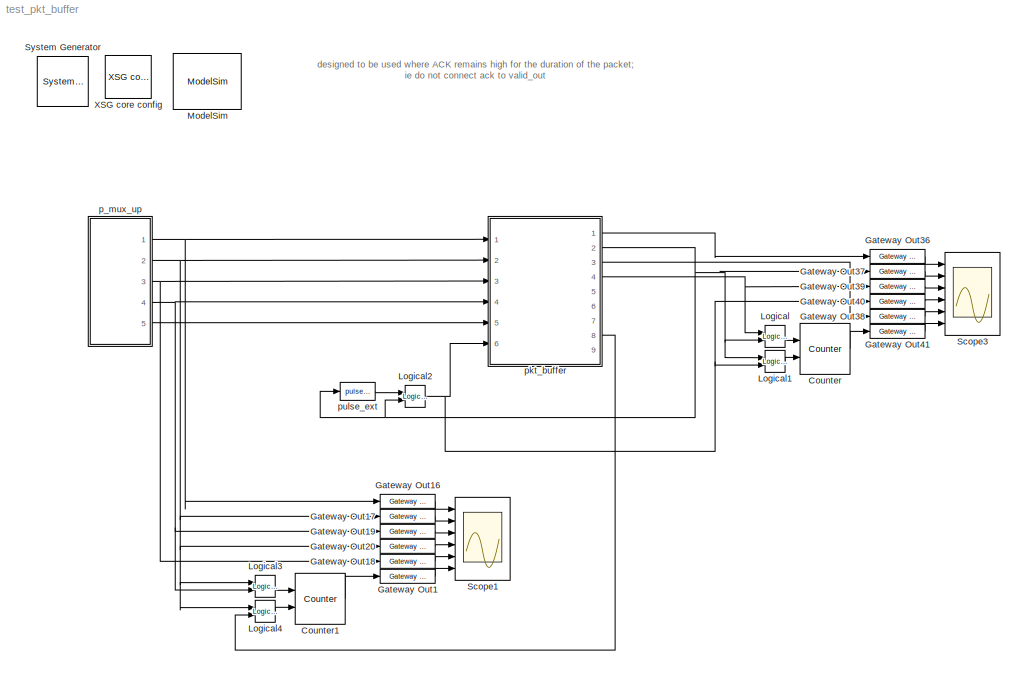
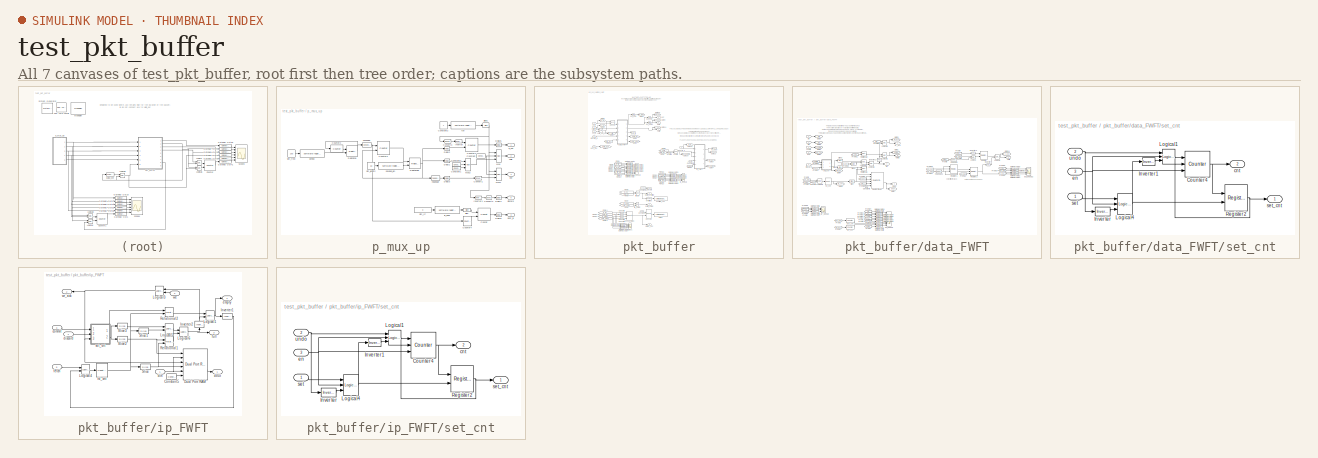
[diagram: thumbnail index - all 7 canvases of the model, root first then tree order]
MODEL test_pkt_buffer
KIND model
BLOCK [Reference]  System Generator  REF=xbsIndex_r3/ System Generator
  AttributesFormatString = System\\nGenerator
  Ports = []
  ShowPortLabels = on
  SourceBlock = xbsIndex_r3/ System Generator
  SourceType = Xilinx System Generator
  Tag = genX
  UserData = DataTag0
  UserDataPersistent = on
  core_generation = According to Block Masks
  dbl_ovrd = According to Block Masks
  deprecated_control = off
  directory = ./test_10gbe_mux_pack/sysgen
  eval_field = 0
  incr_netlist = off
  package = ff1704
  part = xc2vp70
  run_coregen = off
  simulink_period = 1
  speed = -7
  synthesis_tool = XST
  sysclk_period = 4.878
  testbench = off
  trim_vbits = Everywhere in SubSystem
  xilinxfamily = Virtex2P
BLOCK [Reference] Counter  REF=xbsIndex_r3/Counter
  Ports = [2, 1]
  SourceBlock = xbsIndex_r3/Counter
  SourceType = Xilinx Counter Block
  arith_type = Unsigned
  bin_pt = 0
  cnt_by_val = 1
  cnt_to = Inf
  cnt_type = Free Running
  dbl_ovrd = off
  en = on
  explicit_period = off
  gen_core = off
  load_pin = off
  n_bits = 8
  operation = Up
  period = 1
  rst = on
  show_param = off
  start_count = 0
  use_rpm = on
  xl_area = [0, 0, 0, 0, 0, 0, 0]
  xl_use_area = off
BLOCK [Reference] Counter1  REF=xbsIndex_r3/Counter
  Ports = [2, 1]
  SourceBlock = xbsIndex_r3/Counter
  SourceType = Xilinx Counter Block
  arith_type = Unsigned
  bin_pt = 0
  cnt_by_val = 1
  cnt_to = Inf
  cnt_type = Free Running
  dbl_ovrd = off
  en = on
  explicit_period = off
  gen_core = off
  load_pin = off
  n_bits = 8
  operation = Up
  period = 1
  rst = on
  show_param = off
  start_count = 0
  use_rpm = on
  xl_area = [0, 0, 0, 0, 0, 0, 0]
  xl_use_area = off
BLOCK [Reference] Gateway Out1  REF=xbsIndex_r3/Gateway Out
  LOCs = {}
  Ports = [1, 1]
  SourceBlock = xbsIndex_r3/Gateway Out
  SourceType = Xilinx Gateway Out
  arith_type = Boolean
  bin_pt = 6
  hdl_port = on
  locs_specified = off
  nbits = 8
  needs_fixed_name = off
  output_type = Double
  overflow = Wrap
  quantization = Truncate
  show_param = off
  timing_constraint = None
  xl_area = [0, 0, 0, 0, 0, 0, 0]
  xl_use_area = off
BLOCK [Reference] Gateway Out16  REF=xbsIndex_r3/Gateway Out
  LOCs = {}
  Ports = [1, 1]
  SourceBlock = xbsIndex_r3/Gateway Out
  SourceType = Xilinx Gateway Out
  arith_type = Boolean
  bin_pt = 6
  hdl_port = on
  locs_specified = off
  nbits = 8
  needs_fixed_name = off
  output_type = Double
  overflow = Wrap
  quantization = Truncate
  show_param = off
  timing_constraint = None
  xl_area = [0, 0, 0, 0, 0, 0, 0]
  xl_use_area = off
BLOCK [Reference] Gateway Out17  REF=xbsIndex_r3/Gateway Out
  LOCs = {}
  Ports = [1, 1]
  SourceBlock = xbsIndex_r3/Gateway Out
  SourceType = Xilinx Gateway Out
  arith_type = Boolean
  bin_pt = 6
  hdl_port = on
  locs_specified = off
  nbits = 8
  needs_fixed_name = off
  output_type = Double
  overflow = Wrap
  quantization = Truncate
  show_param = off
  timing_constraint = None
  xl_area = [0, 0, 0, 0, 0, 0, 0]
  xl_use_area = off
BLOCK [Reference] Gateway Out18  REF=xbsIndex_r3/Gateway Out
  LOCs = {}
  Ports = [1, 1]
  SourceBlock = xbsIndex_r3/Gateway Out
  SourceType = Xilinx Gateway Out
  arith_type = Boolean
  bin_pt = 6
  hdl_port = on
  locs_specified = off
  nbits = 8
  needs_fixed_name = off
  output_type = Double
  overflow = Wrap
  quantization = Truncate
  show_param = off
  timing_constraint = None
  xl_area = [0, 0, 0, 0, 0, 0, 0]
  xl_use_area = off
BLOCK [Reference] Gateway Out19  REF=xbsIndex_r3/Gateway Out
  LOCs = {}
  Ports = [1, 1]
  SourceBlock = xbsIndex_r3/Gateway Out
  SourceType = Xilinx Gateway Out
  arith_type = Boolean
  bin_pt = 6
  hdl_port = on
  locs_specified = off
  nbits = 8
  needs_fixed_name = off
  output_type = Double
  overflow = Wrap
  quantization = Truncate
  show_param = off
  timing_constraint = None
  xl_area = [0, 0, 0, 0, 0, 0, 0]
  xl_use_area = off
BLOCK [Reference] Gateway Out20  REF=xbsIndex_r3/Gateway Out
  LOCs = {}
  Ports = [1, 1]
  SourceBlock = xbsIndex_r3/Gateway Out
  SourceType = Xilinx Gateway Out
  arith_type = Boolean
  bin_pt = 6
  hdl_port = on
  locs_specified = off
  nbits = 8
  needs_fixed_name = off
  output_type = Double
  overflow = Wrap
  quantization = Truncate
  show_param = off
  timing_constraint = None
  xl_area = [0, 0, 0, 0, 0, 0, 0]
  xl_use_area = off
BLOCK [Reference] Gateway Out36  REF=xbsIndex_r3/Gateway Out
  LOCs = {}
  Ports = [1, 1]
  SourceBlock = xbsIndex_r3/Gateway Out
  SourceType = Xilinx Gateway Out
  arith_type = Boolean
  bin_pt = 6
  hdl_port = on
  locs_specified = off
  nbits = 8
  needs_fixed_name = off
  output_type = Double
  overflow = Wrap
  quantization = Truncate
  show_param = off
  timing_constraint = None
  xl_area = [0, 0, 0, 0, 0, 0, 0]
  xl_use_area = off
BLOCK [Reference] Gateway Out37  REF=xbsIndex_r3/Gateway Out
  LOCs = {}
  Ports = [1, 1]
  SourceBlock = xbsIndex_r3/Gateway Out
  SourceType = Xilinx Gateway Out
  arith_type = Boolean
  bin_pt = 6
  hdl_port = on
  locs_specified = off
  nbits = 8
  needs_fixed_name = off
  output_type = Double
  overflow = Wrap
  quantization = Truncate
  show_param = off
  timing_constraint = None
  xl_area = [0, 0, 0, 0, 0, 0, 0]
  xl_use_area = off
BLOCK [Reference] Gateway Out38  REF=xbsIndex_r3/Gateway Out
  LOCs = {}
  Ports = [1, 1]
  SourceBlock = xbsIndex_r3/Gateway Out
  SourceType = Xilinx Gateway Out
  arith_type = Boolean
  bin_pt = 6
  hdl_port = on
  locs_specified = off
  nbits = 8
  needs_fixed_name = off
  output_type = Double
  overflow = Wrap
  quantization = Truncate
  show_param = off
  timing_constraint = None
  xl_area = [0, 0, 0, 0, 0, 0, 0]
  xl_use_area = off
BLOCK [Reference] Gateway Out39  REF=xbsIndex_r3/Gateway Out
  LOCs = {}
  Ports = [1, 1]
  SourceBlock = xbsIndex_r3/Gateway Out
  SourceType = Xilinx Gateway Out
  arith_type = Boolean
  bin_pt = 6
  hdl_port = on
  locs_specified = off
  nbits = 8
  needs_fixed_name = off
  output_type = Double
  overflow = Wrap
  quantization = Truncate
  show_param = off
  timing_constraint = None
  xl_area = [0, 0, 0, 0, 0, 0, 0]
  xl_use_area = off
BLOCK [Reference] Gateway Out40  REF=xbsIndex_r3/Gateway Out
  LOCs = {}
  Ports = [1, 1]
  SourceBlock = xbsIndex_r3/Gateway Out
  SourceType = Xilinx Gateway Out
  arith_type = Boolean
  bin_pt = 6
  hdl_port = on
  locs_specified = off
  nbits = 8
  needs_fixed_name = off
  output_type = Double
  overflow = Wrap
  quantization = Truncate
  show_param = off
  timing_constraint = None
  xl_area = [0, 0, 0, 0, 0, 0, 0]
  xl_use_area = off
BLOCK [Reference] Gateway Out41  REF=xbsIndex_r3/Gateway Out
  LOCs = {}
  Ports = [1, 1]
  SourceBlock = xbsIndex_r3/Gateway Out
  SourceType = Xilinx Gateway Out
  arith_type = Boolean
  bin_pt = 6
  hdl_port = on
  locs_specified = off
  nbits = 8
  needs_fixed_name = off
  output_type = Double
  overflow = Wrap
  quantization = Truncate
  show_param = off
  timing_constraint = None
  xl_area = [0, 0, 0, 0, 0, 0, 0]
  xl_use_area = off
BLOCK [Reference] Logical  REF=xbsIndex_r3/Logical
  Ports = [2, 1]
  SourceBlock = xbsIndex_r3/Logical
  SourceType = Xilinx Logical Block
  align_bp = on
  arith_type = Unsigned
  bin_pt = 2
  dbl_ovrd = off
  en = off
  explicit_period = off
  inputs = 2
  latency = 0
  logical_function = AND
  n_bits = 8
  period = 1
  precision = Full
  show_param = off
  xl_area = [0, 0, 0, 0, 0, 0, 0]
  xl_use_area = off
BLOCK [Reference] Logical1  REF=xbsIndex_r3/Logical
  Ports = [2, 1]
  SourceBlock = xbsIndex_r3/Logical
  SourceType = Xilinx Logical Block
  align_bp = on
  arith_type = Unsigned
  bin_pt = 2
  dbl_ovrd = off
  en = off
  explicit_period = off
  inputs = 2
  latency = 0
  logical_function = AND
  n_bits = 8
  period = 1
  precision = Full
  show_param = off
  xl_area = [0, 0, 0, 0, 0, 0, 0]
  xl_use_area = off
BLOCK [Reference] Logical2  REF=xbsIndex_r3/Logical
  Ports = [2, 1]
  SourceBlock = xbsIndex_r3/Logical
  SourceType = Xilinx Logical Block
  align_bp = on
  arith_type = Unsigned
  bin_pt = 2
  dbl_ovrd = off
  en = off
  explicit_period = off
  inputs = 2
  latency = 0
  logical_function = OR
  n_bits = 8
  period = 1
  precision = Full
  show_param = off
  xl_area = [0, 0, 0, 0, 0, 0, 0]
  xl_use_area = off
BLOCK [Reference] Logical3  REF=xbsIndex_r3/Logical
  Ports = [2, 1]
  SourceBlock = xbsIndex_r3/Logical
  SourceType = Xilinx Logical Block
  align_bp = on
  arith_type = Unsigned
  bin_pt = 2
  dbl_ovrd = off
  en = off
  explicit_period = off
  inputs = 2
  latency = 0
  logical_function = AND
  n_bits = 8
  period = 1
  precision = Full
  show_param = off
  xl_area = [0, 0, 0, 0, 0, 0, 0]
  xl_use_area = off
BLOCK [Reference] Logical4  REF=xbsIndex_r3/Logical
  Ports = [2, 1]
  SourceBlock = xbsIndex_r3/Logical
  SourceType = Xilinx Logical Block
  align_bp = on
  arith_type = Unsigned
  bin_pt = 2
  dbl_ovrd = off
  en = off
  explicit_period = off
  inputs = 2
  latency = 0
  logical_function = AND
  n_bits = 8
  period = 1
  precision = Full
  show_param = off
  xl_area = [0, 0, 0, 0, 0, 0, 0]
  xl_use_area = off
BLOCK [Reference] ModelSim  REF=xbsIndex_r3/ModelSim
  Ports = []
  SourceBlock = xbsIndex_r3/ModelSim
  SourceType = ModelSim HDL Co-Simulation Interface
  custom_scripts = off
  dir = ./modelsim
  leave_open = on
  skip_compile = off
  startup_timeout = 40
  waveform = on
BLOCK [Scope] Scope1
  DataFormat = StructureWithTime
  LimitDataPoints = off
  NumInputPorts = 6
  Ports = [6]
  SaveName = ScopeData1
  YMax = 453.6~1~1~1~1~5
  YMin = 410.4~-1~-1~-1~0~-5
  ZoomMode = yonly
BLOCK [Scope] Scope3
  DataFormat = StructureWithTime
  LimitDataPoints = off
  NumInputPorts = 6
  Ports = [6]
  YMax = 453.6~1~1~1~1~5
  YMin = 410.4~-1~-1~-1~0~-5
  ZoomMode = yonly
BLOCK [Reference] XSG core config  REF=xps_library/XSG core config  (lib defined in mdl_00b5cec29cd0, mdl_02ab6ecaa3d1, +5 more)
  Ports = []
  ShowPortLabels = on
  SourceBlock = xps_library/XSG core config
  SourceType = xsg core config
  Tag = xps:xsg
  clk_rate = 205
  clk_src = sys_clk2x
  gpio_clk_bit_index = 0
  gpio_clk_io_group = iBOB:sma
  hw_sys = BEE2_usr
  ibob_linux = off
  mpc_type = powerpc405
  sample_period = 1
  synthesis_tool = XST
BLOCK [SubSystem] p_mux_up
  MaskIconFrame = on
  MaskIconOpaque = on
  MaskIconRotate = none
  MaskIconUnits = autoscale
  MinAlgLoopOccurrences = off
  Ports = [0, 5]
  RTWSystemCode = Auto
  TreatAsAtomicUnit = off
BLOCK [Reference] p_mux_up/Concat  REF=xbsIndex_r3/Concat
  Ports = [2, 1]
  SourceBlock = xbsIndex_r3/Concat
  SourceType = Xilinx Bus Concatenator
  dbl_ovrd = off
  explicit_period = off
  num_inputs = 2
  period = 1
BLOCK [Reference] p_mux_up/Constant  REF=xbsIndex_r3/Constant
  Ports = [0, 1]
  SourceBlock = xbsIndex_r3/Constant
  SourceType = Xilinx Constant Block
  arith_type = Boolean
  bin_pt = 0
  carry = CIN
  const = 0
  dbl_ovrd = off
  equ = P=C
  explicit_period = on
  inp1 = P
  inp2 = PCIN>>17
  iostate = 0
  n_bits = 1
  opr = +
  opselect = C
  period = 1
BLOCK [Reference] p_mux_up/Constant1  REF=xbsIndex_r3/Constant
  Ports = [0, 1]
  SourceBlock = xbsIndex_r3/Constant
  SourceType = Xilinx Constant Block
  arith_type = Boolean
  bin_pt = 0
  carry = CIN
  const = 1
  dbl_ovrd = off
  equ = P=C
  explicit_period = off
  inp1 = P
  inp2 = PCIN>>17
  iostate = 0
  n_bits = 1
  opr = +
  opselect = C
  period = 1
BLOCK [Constant] p_mux_up/Constant2
BLOCK [Reference] p_mux_up/Constant3  REF=xbsIndex_r3/Constant
  Ports = [0, 1]
  SourceBlock = xbsIndex_r3/Constant
  SourceType = Xilinx Constant Block
  arith_type = Boolean
  bin_pt = 0
  carry = CIN
  const = 0
  dbl_ovrd = off
  equ = P=C
  explicit_period = off
  inp1 = P
  inp2 = PCIN>>17
  iostate = 0
  n_bits = 1
  opr = +
  opselect = C
  period = 1
BLOCK [Reference] p_mux_up/Convert1  REF=xbsIndex_r3/Convert
  Ports = [1, 1]
  SourceBlock = xbsIndex_r3/Convert
  SourceType = Xilinx Converter Block
  arith_type = Boolean
  bin_pt = 6
  dbl_ovrd = off
  explicit_period = on
  inserted_by_tool = off
  latency = 0
  n_bits = 8
  overflow = Wrap
  period = 1
  pipeline = off
  quantization = Truncate
  show_param = off
  xl_area = [0, 0, 0, 0, 0, 0, 0]
  xl_use_area = off
BLOCK [Reference] p_mux_up/Convert2  REF=xbsIndex_r3/Convert
  Ports = [1, 1]
  SourceBlock = xbsIndex_r3/Convert
  SourceType = Xilinx Converter Block
  arith_type = Boolean
  bin_pt = 6
  dbl_ovrd = off
  explicit_period = on
  inserted_by_tool = off
  latency = 0
  n_bits = 8
  overflow = Wrap
  period = 1
  pipeline = off
  quantization = Truncate
  show_param = off
  xl_area = [0, 0, 0, 0, 0, 0, 0]
  xl_use_area = off
BLOCK [Reference] p_mux_up/Convert3  REF=xbsIndex_r3/Convert
  Ports = [1, 1]
  SourceBlock = xbsIndex_r3/Convert
  SourceType = Xilinx Converter Block
  arith_type = Boolean
  bin_pt = 6
  dbl_ovrd = off
  explicit_period = on
  inserted_by_tool = off
  latency = 0
  n_bits = 8
  overflow = Wrap
  period = 1
  pipeline = off
  quantization = Truncate
  show_param = off
  xl_area = [0, 0, 0, 0, 0, 0, 0]
  xl_use_area = off
BLOCK [Reference] p_mux_up/Counter1  REF=xbsIndex_r3/Counter
  Ports = [2, 1]
  SourceBlock = xbsIndex_r3/Counter
  SourceType = Xilinx Counter Block
  arith_type = Unsigned
  bin_pt = 0
  cnt_by_val = 1
  cnt_to = Inf
  cnt_type = Free Running
  dbl_ovrd = off
  en = on
  explicit_period = off
  gen_core = off
  load_pin = off
  n_bits = 64
  operation = Up
  period = 1
  rst = on
  show_param = off
  start_count = 0
  use_rpm = off
  xl_area = [0, 0, 0, 0, 0, 0, 0]
  xl_use_area = off
BLOCK [Reference] p_mux_up/Counter2  REF=xbsIndex_r3/Counter
  Ports = [1, 1]
  SourceBlock = xbsIndex_r3/Counter
  SourceType = Xilinx Counter Block
  arith_type = Unsigned
  bin_pt = 0
  cnt_by_val = 1
  cnt_to = Inf
  cnt_type = Free Running
  dbl_ovrd = off
  en = off
  explicit_period = on
  gen_core = off
  load_pin = off
  n_bits = 32
  operation = Up
  period = 1
  rst = on
  show_param = off
  start_count = 1
  use_rpm = on
  xl_area = [0, 0, 0, 0, 0, 0, 0]
  xl_use_area = off
BLOCK [Reference] p_mux_up/Counter3  REF=xbsIndex_r3/Counter
  Ports = [2, 1]
  SourceBlock = xbsIndex_r3/Counter
  SourceType = Xilinx Counter Block
  arith_type = Unsigned
  bin_pt = 0
  cnt_by_val = 1
  cnt_to = 1023
  cnt_type = Free Running
  dbl_ovrd = off
  en = on
  explicit_period = on
  gen_core = off
  load_pin = off
  n_bits = 32
  operation = Up
  period = 1
  rst = on
  show_param = off
  start_count = 0
  use_rpm = on
  xl_area = [0, 0, 0, 0, 0, 0, 0]
  xl_use_area = off
BLOCK [Reference] p_mux_up/Counter4  REF=xbsIndex_r3/Counter
  Ports = [1, 1]
  SourceBlock = xbsIndex_r3/Counter
  SourceType = Xilinx Counter Block
  arith_type = Unsigned
  bin_pt = 0
  cnt_by_val = 1
  cnt_to = 1023
  cnt_type = Free Running
  dbl_ovrd = off
  en = on
  explicit_period = on
  gen_core = off
  load_pin = off
  n_bits = 2
  operation = Up
  period = 1
  rst = off
  show_param = off
  start_count = 0
  use_rpm = on
  xl_area = [0, 0, 0, 0, 0, 0, 0]
  xl_use_area = off
BLOCK [Reference] p_mux_up/Delay1  REF=xbsIndex_r3/Delay
  Ports = [1, 1]
  SourceBlock = xbsIndex_r3/Delay
  SourceType = Xilinx Delay Block
  accept_only_valid = off
  dbl_ovrd = off
  en = off
  explicit_period = off
  init_zero = on
  latency = 1
  period = 1
  reg_retiming = on
  show_param = off
  xl_area = [0, 0, 0, 0, 0, 0, 0]
  xl_use_area = off
BLOCK [Reference] p_mux_up/Delay2  REF=xbsIndex_r3/Delay
  Ports = [1, 1]
  SourceBlock = xbsIndex_r3/Delay
  SourceType = Xilinx Delay Block
  accept_only_valid = off
  dbl_ovrd = off
  en = off
  explicit_period = off
  init_zero = on
  latency = 1
  period = 1
  reg_retiming = on
  show_param = off
  xl_area = [0, 0, 0, 0, 0, 0, 0]
  xl_use_area = off
BLOCK [Reference] p_mux_up/Delay3  REF=xbsIndex_r3/Delay
  Ports = [1, 1]
  SourceBlock = xbsIndex_r3/Delay
  SourceType = Xilinx Delay Block
  accept_only_valid = off
  dbl_ovrd = off
  en = off
  explicit_period = off
  init_zero = on
  latency = 1
  period = 1
  reg_retiming = on
  show_param = off
  xl_area = [0, 0, 0, 0, 0, 0, 0]
  xl_use_area = off
BLOCK [Reference] p_mux_up/Delay4  REF=xbsIndex_r3/Delay
  Ports = [1, 1]
  SourceBlock = xbsIndex_r3/Delay
  SourceType = Xilinx Delay Block
  accept_only_valid = off
  dbl_ovrd = off
  en = off
  explicit_period = off
  init_zero = on
  latency = 1
  period = 1
  reg_retiming = on
  show_param = off
  xl_area = [0, 0, 0, 0, 0, 0, 0]
  xl_use_area = off
BLOCK [Reference] p_mux_up/Delay5  REF=xbsIndex_r3/Delay
  Ports = [1, 1]
  SourceBlock = xbsIndex_r3/Delay
  SourceType = Xilinx Delay Block
  accept_only_valid = off
  dbl_ovrd = off
  en = off
  explicit_period = off
  init_zero = on
  latency = 1
  period = 1
  reg_retiming = on
  show_param = off
  xl_area = [0, 0, 0, 0, 0, 0, 0]
  xl_use_area = off
BLOCK [Reference] p_mux_up/Delay8  REF=xbsIndex_r3/Delay
  Ports = [1, 1]
  SourceBlock = xbsIndex_r3/Delay
  SourceType = Xilinx Delay Block
  accept_only_valid = off
  dbl_ovrd = off
  en = off
  explicit_period = off
  init_zero = on
  latency = 2
  period = 1
  reg_retiming = on
  show_param = off
  xl_area = [0, 0, 0, 0, 0, 0, 0]
  xl_use_area = off
BLOCK [Reference] p_mux_up/Inverter  REF=xbsIndex_r3/Inverter
  Ports = [1, 1]
  SourceBlock = xbsIndex_r3/Inverter
  SourceType = Xilinx Inverter
  dbl_ovrd = off
  en = off
  explicit_period = off
  latency = 0
  period = 1
  show_param = off
  xl_area = [0, 0, 0, 0, 0, 0, 0]
  xl_use_area = off
BLOCK [Reference] p_mux_up/Inverter1  REF=xbsIndex_r3/Inverter
  Ports = [1, 1]
  SourceBlock = xbsIndex_r3/Inverter
  SourceType = Xilinx Inverter
  dbl_ovrd = off
  en = off
  explicit_period = off
  latency = 0
  period = 1
  show_param = off
  xl_area = [0, 0, 0, 0, 0, 0, 0]
  xl_use_area = off
BLOCK [Reference] p_mux_up/Mux  REF=xbsIndex_r3/Mux
  Ports = [3, 1]
  SourceBlock = xbsIndex_r3/Mux
  SourceType = Xilinx Multiplexer Block
  arith_type = Signed  (2's comp)
  bin_pt = 2
  dbl_ovrd = off
  en = off
  explicit_period = off
  gen_core = off
  inputs = 2
  latency = 1
  mux_type = off
  n_bits = 8
  overflow = Wrap
  period = 1
  precision = Full
  quantization = Truncate
  show_param = off
  use_rpm = off
  xl_area = [0, 0, 0, 0, 0, 0, 0]
  xl_use_area = off
BLOCK [Reference] p_mux_up/Mux1  REF=xbsIndex_r3/Mux
  Ports = [3, 1]
  SourceBlock = xbsIndex_r3/Mux
  SourceType = Xilinx Multiplexer Block
  arith_type = Signed  (2's comp)
  bin_pt = 2
  dbl_ovrd = off
  en = off
  explicit_period = off
  gen_core = off
  inputs = 2
  latency = 1
  mux_type = off
  n_bits = 8
  overflow = Wrap
  period = 1
  precision = Full
  quantization = Truncate
  show_param = off
  use_rpm = off
  xl_area = [0, 0, 0, 0, 0, 0, 0]
  xl_use_area = off
BLOCK [Reference] p_mux_up/Mux2  REF=xbsIndex_r3/Mux
  Ports = [3, 1]
  SourceBlock = xbsIndex_r3/Mux
  SourceType = Xilinx Multiplexer Block
  arith_type = Signed  (2's comp)
  bin_pt = 2
  dbl_ovrd = off
  en = off
  explicit_period = off
  gen_core = off
  inputs = 2
  latency = 1
  mux_type = off
  n_bits = 8
  overflow = Wrap
  period = 1
  precision = Full
  quantization = Truncate
  show_param = off
  use_rpm = off
  xl_area = [0, 0, 0, 0, 0, 0, 0]
  xl_use_area = off
BLOCK [Reference] p_mux_up/Relational  REF=xbsIndex_r3/Relational
  Ports = [2, 1]
  SourceBlock = xbsIndex_r3/Relational
  SourceType = Xilinx Relational Block
  dbl_ovrd = off
  en = off
  explicit_period = on
  latency = 0
  mode = a>=b
  period = 1
  show_param = off
  xl_area = [0, 0, 0, 0, 0, 0, 0]
  xl_use_area = off
BLOCK [Reference] p_mux_up/Relational5  REF=xbsIndex_r3/Relational
  Ports = [2, 1]
  SourceBlock = xbsIndex_r3/Relational
  SourceType = Xilinx Relational Block
  dbl_ovrd = off
  en = off
  explicit_period = off
  latency = 0
  mode = a<b
  period = 1
  show_param = off
  xl_area = [0, 0, 0, 0, 0, 0, 0]
  xl_use_area = off
BLOCK [Reference] p_mux_up/Slice  REF=xbsIndex_r3/Slice
  Ports = [1, 1]
  SourceBlock = xbsIndex_r3/Slice
  SourceType = Xilinx Slice Block
  base0 = LSB of Input
  base1 = MSB of Input
  bit0 = 0
  bit1 = 0
  boolean_output = off
  dbl_ovrd = off
  explicit_period = off
  mode = Upper Bit Location + Width
  nbits = 30
  period = 1
BLOCK [Reference] p_mux_up/Slice1  REF=xbsIndex_r3/Slice
  Ports = [1, 1]
  SourceBlock = xbsIndex_r3/Slice
  SourceType = Xilinx Slice Block
  base0 = LSB of Input
  base1 = MSB of Input
  bit0 = 0
  bit1 = 1
  boolean_output = off
  dbl_ovrd = off
  explicit_period = off
  mode = Lower Bit Location + Width
  nbits = 1
  period = 1
BLOCK [Outport] p_mux_up/d_out
  BusOutputAsStruct = off
  IconDisplay = Port number
BLOCK [Outport] p_mux_up/dest_ip
  BusOutputAsStruct = off
  IconDisplay = Port number
  Port = 3
BLOCK [Outport] p_mux_up/discard
  BusOutputAsStruct = off
  IconDisplay = Port number
  Port = 5
BLOCK [Outport] p_mux_up/eof
  BusOutputAsStruct = off
  IconDisplay = Port number
  Port = 4
BLOCK [Reference] p_mux_up/ip_addr  REF=xps_library/software register  (lib defined in mdl_00b5cec29cd0, mdl_02ab6ecaa3d1, +5 more)
  Ports = [1, 1]
  ShowPortLabels = on
  SourceBlock = xps_library/software register
  SourceType = Unknown
  Tag = xps:sw_reg
  arith_type = Unsigned
  bin_pt = 0
  bitwidth = 32
  gw_name = test_pkt_buffer_p_mux_up_ip_addr_user_data_out
  io_dir = From Processor
  sample_period = 1
BLOCK [Reference] p_mux_up/negedge  REF=casper_library/Misc/negedge  (lib defined in mdl_138b2fc3435f, mdl_4ed325b712b3, +2 more)
  Ports = [1, 1]
  ShowPortLabels = on
  SourceBlock = casper_library/Misc/negedge
  SourceType = negedge
  Tag = Rising Edge Detector
BLOCK [Reference] p_mux_up/payload_len  REF=xps_library/software register  (lib defined in mdl_00b5cec29cd0, mdl_02ab6ecaa3d1, +5 more)
  Ports = [1, 1]
  ShowPortLabels = on
  SourceBlock = xps_library/software register
  SourceType = Unknown
  Tag = xps:sw_reg
  arith_type = Unsigned
  bin_pt = 0
  bitwidth = 32
  gw_name = test_pkt_buffer_p_mux_up_payload_len_user_data_out
  io_dir = From Processor
  sample_period = 1
BLOCK [Reference] p_mux_up/period  REF=xps_library/software register  (lib defined in mdl_00b5cec29cd0, mdl_02ab6ecaa3d1, +5 more)
  Ports = [1, 1]
  ShowPortLabels = on
  SourceBlock = xps_library/software register
  SourceType = Unknown
  Tag = xps:sw_reg
  arith_type = Unsigned
  bin_pt = 0
  bitwidth = 32
  gw_name = test_pkt_buffer_p_mux_up_period_user_data_out
  io_dir = From Processor
  sample_period = 1
BLOCK [Reference] p_mux_up/posedge  REF=casper_library/Misc/pulse_ext/posedge  (lib defined in mdl_138b2fc3435f, mdl_4ed325b712b3, +2 more)
  Ports = [1, 1]
  ShowPortLabels = on
  SourceBlock = casper_library/Misc/pulse_ext/posedge
  SourceType = SubSystem
  Tag = Rising Edge Detector
BLOCK [Reference] p_mux_up/run  REF=xps_library/software register  (lib defined in mdl_00b5cec29cd0, mdl_02ab6ecaa3d1, +5 more)
  Ports = [1, 1]
  ShowPortLabels = on
  SourceBlock = xps_library/software register
  SourceType = Unknown
  Tag = xps:sw_reg
  arith_type = Unsigned
  bin_pt = 0
  bitwidth = 32
  gw_name = test_pkt_buffer_p_mux_up_run_user_data_out
  io_dir = From Processor
  sample_period = 1
BLOCK [Constant] p_mux_up/sim_IP
  Value = 0
BLOCK [Constant] p_mux_up/sim_freq
  Value = 200
BLOCK [Constant] p_mux_up/sim_length
  Value = 50
BLOCK [Outport] p_mux_up/valid
  BusOutputAsStruct = off
  IconDisplay = Port number
  Port = 2
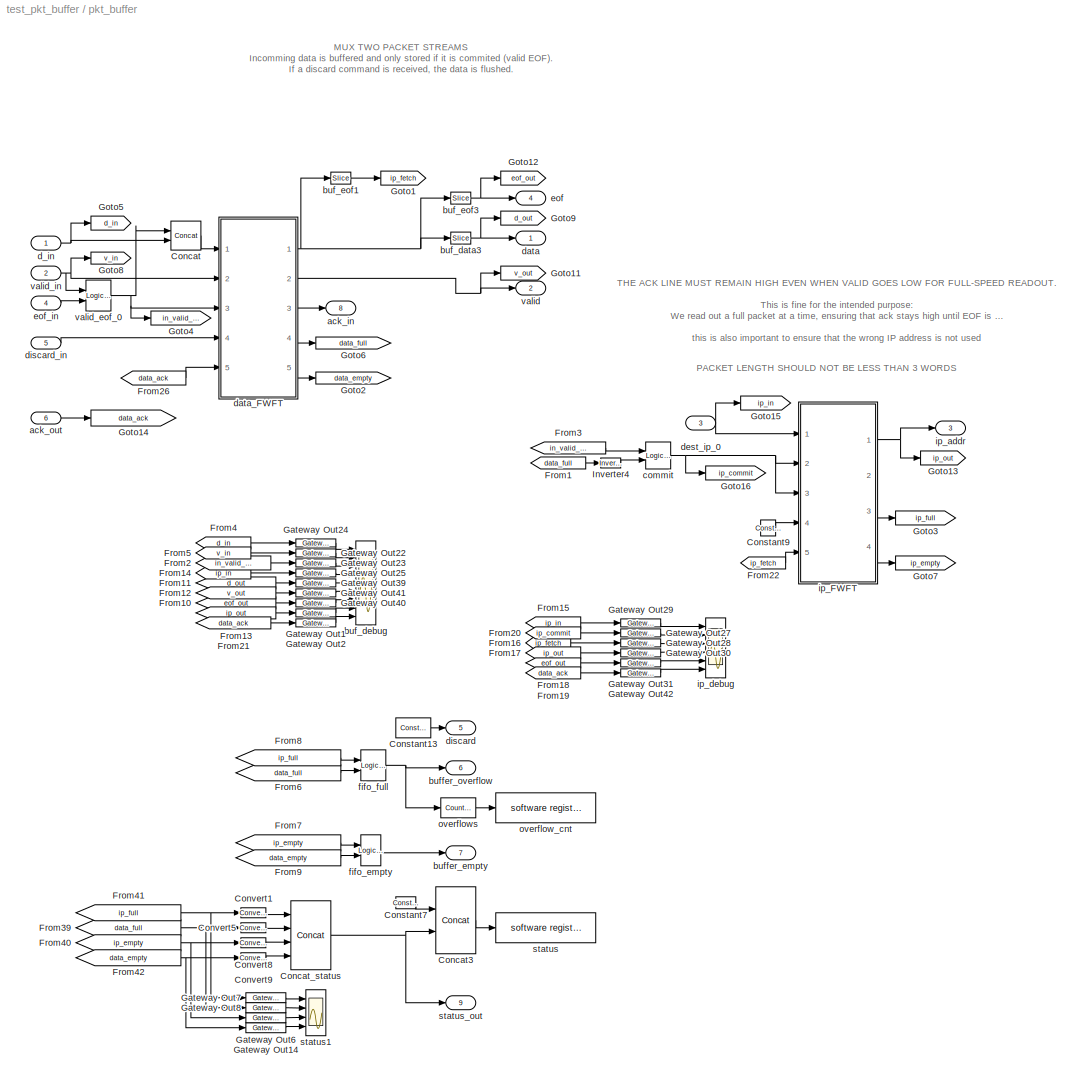
BLOCK [SubSystem] pkt_buffer
  AttributesFormatString = Max 1024 data words.\nMax 16 pkts.
  MaskCallbackString = |
  MaskDescription = This block allows you to mux together two data streams to be sent to the 10GbE core
  MaskEnableString = on,on
  MaskIconFrame = on
  MaskIconOpaque = on
  MaskIconRotate = none
  MaskIconUnits = autoscale
  MaskInitialization = fmtstr = sprintf('Max %d data words.\\nMax %d pkts.', 2^depth_data_bits,2^depth_hdr_bits);\nset_param(gcb, 'AttributesFormatString', fmtstr);\n
  MaskPromptString = Depth contents (2^?)|Maximum number of packets to buffer? (2^?)
  MaskStyleString = edit,edit
  MaskTabNameString = ,
  MaskToolTipString = on,on
  MaskTunableValueString = off,on
  MaskType = mux_packets
  MaskValueString = 10|4
  MaskVarAliasString = ,
  MaskVariables = depth_data_bits=@1;depth_hdr_bits=@2;
  MaskVisibilityString = on,on
  MinAlgLoopOccurrences = off
  Ports = [6, 9]
  RTWSystemCode = Auto
  TreatAsAtomicUnit = off
BLOCK [Reference] pkt_buffer/Concat  REF=xbsIndex_r3/Concat
  Ports = [2, 1]
  SourceBlock = xbsIndex_r3/Concat
  SourceType = Xilinx Bus Concatenator
  dbl_ovrd = off
  explicit_period = off
  num_inputs = 2
  period = 1
BLOCK [Reference] pkt_buffer/Concat3  REF=xbsIndex_r3/Concat
  Ports = [2, 1]
  SourceBlock = xbsIndex_r3/Concat
  SourceType = Xilinx Bus Concatenator
  dbl_ovrd = off
  explicit_period = off
  num_inputs = 2
  period = 1
BLOCK [Reference] pkt_buffer/Concat_status  REF=xbsIndex_r3/Concat
  Ports = [4, 1]
  SourceBlock = xbsIndex_r3/Concat
  SourceType = Xilinx Bus Concatenator
  dbl_ovrd = off
  explicit_period = on
  num_inputs = 4
  period = 1
BLOCK [Reference] pkt_buffer/Constant13  REF=xbsIndex_r3/Constant
  Ports = [0, 1]
  SourceBlock = xbsIndex_r3/Constant
  SourceType = Xilinx Constant Block
  arith_type = Boolean
  bin_pt = 0
  carry = CIN
  const = 0
  dbl_ovrd = off
  equ = P=C
  explicit_period = on
  inp1 = P
  inp2 = PCIN>>17
  iostate = 0
  n_bits = 1
  opr = +
  opselect = C
  period = 1
BLOCK [Reference] pkt_buffer/Constant7  REF=xbsIndex_r3/Constant
  Ports = [0, 1]
  SourceBlock = xbsIndex_r3/Constant
  SourceType = Xilinx Constant Block
  arith_type = Unsigned
  bin_pt = 0
  carry = CIN
  const = 0
  dbl_ovrd = off
  equ = P=C
  explicit_period = on
  inp1 = P
  inp2 = PCIN>>17
  iostate = 0
  n_bits = 32-9
  opr = +
  opselect = C
  period = 1
BLOCK [Reference] pkt_buffer/Constant9  REF=xbsIndex_r3/Constant
  Ports = [0, 1]
  SourceBlock = xbsIndex_r3/Constant
  SourceType = Xilinx Constant Block
  arith_type = Boolean
  bin_pt = 0
  carry = CIN
  const = 0
  dbl_ovrd = off
  equ = P=C
  explicit_period = on
  inp1 = P
  inp2 = PCIN>>17
  iostate = 0
  n_bits = 1
  opr = +
  opselect = C
  period = 1
BLOCK [Reference] pkt_buffer/Convert1  REF=xbsIndex_r3/Convert
  Ports = [1, 1]
  SourceBlock = xbsIndex_r3/Convert
  SourceType = Xilinx Converter Block
  arith_type = Unsigned
  bin_pt = 0
  dbl_ovrd = off
  explicit_period = off
  inserted_by_tool = off
  latency = 0
  n_bits = 1
  overflow = Wrap
  period = 1
  pipeline = off
  quantization = Truncate
  show_param = off
  xl_area = [0, 0, 0, 0, 0, 0, 0]
  xl_use_area = off
BLOCK [Reference] pkt_buffer/Convert5  REF=xbsIndex_r3/Convert
  Ports = [1, 1]
  SourceBlock = xbsIndex_r3/Convert
  SourceType = Xilinx Converter Block
  arith_type = Unsigned
  bin_pt = 0
  dbl_ovrd = off
  explicit_period = off
  inserted_by_tool = off
  latency = 0
  n_bits = 1
  overflow = Wrap
  period = 1
  pipeline = off
  quantization = Truncate
  show_param = off
  xl_area = [0, 0, 0, 0, 0, 0, 0]
  xl_use_area = off
BLOCK [Reference] pkt_buffer/Convert8  REF=xbsIndex_r3/Convert
  Ports = [1, 1]
  SourceBlock = xbsIndex_r3/Convert
  SourceType = Xilinx Converter Block
  arith_type = Unsigned
  bin_pt = 0
  dbl_ovrd = off
  explicit_period = off
  inserted_by_tool = off
  latency = 0
  n_bits = 1
  overflow = Wrap
  period = 1
  pipeline = off
  quantization = Truncate
  show_param = off
  xl_area = [0, 0, 0, 0, 0, 0, 0]
  xl_use_area = off
BLOCK [Reference] pkt_buffer/Convert9  REF=xbsIndex_r3/Convert
  Ports = [1, 1]
  SourceBlock = xbsIndex_r3/Convert
  SourceType = Xilinx Converter Block
  arith_type = Unsigned
  bin_pt = 0
  dbl_ovrd = off
  explicit_period = off
  inserted_by_tool = off
  latency = 0
  n_bits = 1
  overflow = Wrap
  period = 1
  pipeline = off
  quantization = Truncate
  show_param = off
  xl_area = [0, 0, 0, 0, 0, 0, 0]
  xl_use_area = off
BLOCK [From] pkt_buffer/From1
  CloseFcn = tagdialog Close
  GotoTag = data_full
BLOCK [From] pkt_buffer/From10
  CloseFcn = tagdialog Close
  GotoTag = eof_out
BLOCK [From] pkt_buffer/From11
  CloseFcn = tagdialog Close
  GotoTag = d_out
BLOCK [From] pkt_buffer/From12
  CloseFcn = tagdialog Close
  GotoTag = v_out
BLOCK [From] pkt_buffer/From13
  CloseFcn = tagdialog Close
  GotoTag = ip_out
BLOCK [From] pkt_buffer/From14
  CloseFcn = tagdialog Close
  GotoTag = ip_in
BLOCK [From] pkt_buffer/From15
  CloseFcn = tagdialog Close
  GotoTag = ip_in
BLOCK [From] pkt_buffer/From16
  CloseFcn = tagdialog Close
  GotoTag = ip_fetch
BLOCK [From] pkt_buffer/From17
  CloseFcn = tagdialog Close
  GotoTag = ip_out
BLOCK [From] pkt_buffer/From18
  CloseFcn = tagdialog Close
  GotoTag = eof_out
BLOCK [From] pkt_buffer/From19
  CloseFcn = tagdialog Close
  GotoTag = data_ack
BLOCK [From] pkt_buffer/From2
  CloseFcn = tagdialog Close
  GotoTag = in_valid_eof
BLOCK [From] pkt_buffer/From20
  CloseFcn = tagdialog Close
  GotoTag = ip_commit
BLOCK [From] pkt_buffer/From21
  CloseFcn = tagdialog Close
  GotoTag = data_ack
BLOCK [From] pkt_buffer/From22
  CloseFcn = tagdialog Close
  GotoTag = ip_fetch
BLOCK [From] pkt_buffer/From26
  CloseFcn = tagdialog Close
  GotoTag = data_ack
BLOCK [From] pkt_buffer/From3
  CloseFcn = tagdialog Close
  GotoTag = in_valid_eof
BLOCK [From] pkt_buffer/From39
  CloseFcn = tagdialog Close
  GotoTag = data_full
BLOCK [From] pkt_buffer/From4
  CloseFcn = tagdialog Close
  GotoTag = d_in
BLOCK [From] pkt_buffer/From40
  CloseFcn = tagdialog Close
  GotoTag = ip_empty
BLOCK [From] pkt_buffer/From41
  CloseFcn = tagdialog Close
  GotoTag = ip_full
BLOCK [From] pkt_buffer/From42
  CloseFcn = tagdialog Close
  GotoTag = data_empty
BLOCK [From] pkt_buffer/From5
  CloseFcn = tagdialog Close
  GotoTag = v_in
BLOCK [From] pkt_buffer/From6
  CloseFcn = tagdialog Close
  GotoTag = data_full
BLOCK [From] pkt_buffer/From7
  CloseFcn = tagdialog Close
  GotoTag = ip_empty
BLOCK [From] pkt_buffer/From8
  CloseFcn = tagdialog Close
  GotoTag = ip_full
BLOCK [From] pkt_buffer/From9
  CloseFcn = tagdialog Close
  GotoTag = data_empty
BLOCK [Reference] pkt_buffer/Gateway Out1  REF=xbsIndex_r3/Gateway Out
  LOCs = {}
  Ports = [1, 1]
  SourceBlock = xbsIndex_r3/Gateway Out
  SourceType = Xilinx Gateway Out
  arith_type = Boolean
  bin_pt = 6
  hdl_port = on
  locs_specified = off
  nbits = 8
  needs_fixed_name = off
  output_type = Double
  overflow = Wrap
  quantization = Truncate
  show_param = off
  timing_constraint = None
  xl_area = [0, 0, 0, 0, 0, 0, 0]
  xl_use_area = off
BLOCK [Reference] pkt_buffer/Gateway Out14  REF=xbsIndex_r3/Gateway Out
  LOCs = {}
  Ports = [1, 1]
  SourceBlock = xbsIndex_r3/Gateway Out
  SourceType = Xilinx Gateway Out
  arith_type = Boolean
  bin_pt = 6
  hdl_port = on
  locs_specified = off
  nbits = 8
  needs_fixed_name = off
  output_type = Double
  overflow = Wrap
  quantization = Truncate
  show_param = off
  timing_constraint = None
  xl_area = [0, 0, 0, 0, 0, 0, 0]
  xl_use_area = off
BLOCK [Reference] pkt_buffer/Gateway Out2  REF=xbsIndex_r3/Gateway Out
  LOCs = {}
  Ports = [1, 1]
  SourceBlock = xbsIndex_r3/Gateway Out
  SourceType = Xilinx Gateway Out
  arith_type = Boolean
  bin_pt = 6
  hdl_port = on
  locs_specified = off
  nbits = 8
  needs_fixed_name = off
  output_type = Double
  overflow = Wrap
  quantization = Truncate
  show_param = off
  timing_constraint = None
  xl_area = [0, 0, 0, 0, 0, 0, 0]
  xl_use_area = off
BLOCK [Reference] pkt_buffer/Gateway Out22  REF=xbsIndex_r3/Gateway Out
  LOCs = {}
  Ports = [1, 1]
  SourceBlock = xbsIndex_r3/Gateway Out
  SourceType = Xilinx Gateway Out
  arith_type = Boolean
  bin_pt = 6
  hdl_port = on
  locs_specified = off
  nbits = 8
  needs_fixed_name = off
  output_type = Double
  overflow = Wrap
  quantization = Truncate
  show_param = off
  timing_constraint = None
  xl_area = [0, 0, 0, 0, 0, 0, 0]
  xl_use_area = off
BLOCK [Reference] pkt_buffer/Gateway Out23  REF=xbsIndex_r3/Gateway Out
  LOCs = {}
  Ports = [1, 1]
  SourceBlock = xbsIndex_r3/Gateway Out
  SourceType = Xilinx Gateway Out
  arith_type = Boolean
  bin_pt = 6
  hdl_port = on
  locs_specified = off
  nbits = 8
  needs_fixed_name = off
  output_type = Double
  overflow = Wrap
  quantization = Truncate
  show_param = off
  timing_constraint = None
  xl_area = [0, 0, 0, 0, 0, 0, 0]
  xl_use_area = off
BLOCK [Reference] pkt_buffer/Gateway Out24  REF=xbsIndex_r3/Gateway Out
  LOCs = {}
  Ports = [1, 1]
  SourceBlock = xbsIndex_r3/Gateway Out
  SourceType = Xilinx Gateway Out
  arith_type = Boolean
  bin_pt = 6
  hdl_port = on
  locs_specified = off
  nbits = 8
  needs_fixed_name = off
  output_type = Double
  overflow = Wrap
  quantization = Truncate
  show_param = off
  timing_constraint = None
  xl_area = [0, 0, 0, 0, 0, 0, 0]
  xl_use_area = off
BLOCK [Reference] pkt_buffer/Gateway Out25  REF=xbsIndex_r3/Gateway Out
  LOCs = {}
  Ports = [1, 1]
  SourceBlock = xbsIndex_r3/Gateway Out
  SourceType = Xilinx Gateway Out
  arith_type = Boolean
  bin_pt = 6
  hdl_port = on
  locs_specified = off
  nbits = 8
  needs_fixed_name = off
  output_type = Double
  overflow = Wrap
  quantization = Truncate
  show_param = off
  timing_constraint = None
  xl_area = [0, 0, 0, 0, 0, 0, 0]
  xl_use_area = off
BLOCK [Reference] pkt_buffer/Gateway Out27  REF=xbsIndex_r3/Gateway Out
  LOCs = {}
  Ports = [1, 1]
  SourceBlock = xbsIndex_r3/Gateway Out
  SourceType = Xilinx Gateway Out
  arith_type = Boolean
  bin_pt = 6
  hdl_port = on
  locs_specified = off
  nbits = 8
  needs_fixed_name = off
  output_type = Double
  overflow = Wrap
  quantization = Truncate
  show_param = off
  timing_constraint = None
  xl_area = [0, 0, 0, 0, 0, 0, 0]
  xl_use_area = off
BLOCK [Reference] pkt_buffer/Gateway Out28  REF=xbsIndex_r3/Gateway Out
  LOCs = {}
  Ports = [1, 1]
  SourceBlock = xbsIndex_r3/Gateway Out
  SourceType = Xilinx Gateway Out
  arith_type = Boolean
  bin_pt = 6
  hdl_port = on
  locs_specified = off
  nbits = 8
  needs_fixed_name = off
  output_type = Double
  overflow = Wrap
  quantization = Truncate
  show_param = off
  timing_constraint = None
  xl_area = [0, 0, 0, 0, 0, 0, 0]
  xl_use_area = off
BLOCK [Reference] pkt_buffer/Gateway Out29  REF=xbsIndex_r3/Gateway Out
  LOCs = {}
  Ports = [1, 1]
  SourceBlock = xbsIndex_r3/Gateway Out
  SourceType = Xilinx Gateway Out
  arith_type = Boolean
  bin_pt = 6
  hdl_port = on
  locs_specified = off
  nbits = 8
  needs_fixed_name = off
  output_type = Double
  overflow = Wrap
  quantization = Truncate
  show_param = off
  timing_constraint = None
  xl_area = [0, 0, 0, 0, 0, 0, 0]
  xl_use_area = off
BLOCK [Reference] pkt_buffer/Gateway Out30  REF=xbsIndex_r3/Gateway Out
  LOCs = {}
  Ports = [1, 1]
  SourceBlock = xbsIndex_r3/Gateway Out
  SourceType = Xilinx Gateway Out
  arith_type = Boolean
  bin_pt = 6
  hdl_port = on
  locs_specified = off
  nbits = 8
  needs_fixed_name = off
  output_type = Double
  overflow = Wrap
  quantization = Truncate
  show_param = off
  timing_constraint = None
  xl_area = [0, 0, 0, 0, 0, 0, 0]
  xl_use_area = off
BLOCK [Reference] pkt_buffer/Gateway Out31  REF=xbsIndex_r3/Gateway Out
  LOCs = {}
  Ports = [1, 1]
  SourceBlock = xbsIndex_r3/Gateway Out
  SourceType = Xilinx Gateway Out
  arith_type = Boolean
  bin_pt = 6
  hdl_port = on
  locs_specified = off
  nbits = 8
  needs_fixed_name = off
  output_type = Double
  overflow = Wrap
  quantization = Truncate
  show_param = off
  timing_constraint = None
  xl_area = [0, 0, 0, 0, 0, 0, 0]
  xl_use_area = off
BLOCK [Reference] pkt_buffer/Gateway Out39  REF=xbsIndex_r3/Gateway Out
  LOCs = {}
  Ports = [1, 1]
  SourceBlock = xbsIndex_r3/Gateway Out
  SourceType = Xilinx Gateway Out
  arith_type = Boolean
  bin_pt = 6
  hdl_port = on
  locs_specified = off
  nbits = 8
  needs_fixed_name = off
  output_type = Double
  overflow = Wrap
  quantization = Truncate
  show_param = off
  timing_constraint = None
  xl_area = [0, 0, 0, 0, 0, 0, 0]
  xl_use_area = off
BLOCK [Reference] pkt_buffer/Gateway Out40  REF=xbsIndex_r3/Gateway Out
  LOCs = {}
  Ports = [1, 1]
  SourceBlock = xbsIndex_r3/Gateway Out
  SourceType = Xilinx Gateway Out
  arith_type = Boolean
  bin_pt = 6
  hdl_port = on
  locs_specified = off
  nbits = 8
  needs_fixed_name = off
  output_type = Double
  overflow = Wrap
  quantization = Truncate
  show_param = off
  timing_constraint = None
  xl_area = [0, 0, 0, 0, 0, 0, 0]
  xl_use_area = off
BLOCK [Reference] pkt_buffer/Gateway Out41  REF=xbsIndex_r3/Gateway Out
  LOCs = {}
  Ports = [1, 1]
  SourceBlock = xbsIndex_r3/Gateway Out
  SourceType = Xilinx Gateway Out
  arith_type = Boolean
  bin_pt = 6
  hdl_port = on
  locs_specified = off
  nbits = 8
  needs_fixed_name = off
  output_type = Double
  overflow = Wrap
  quantization = Truncate
  show_param = off
  timing_constraint = None
  xl_area = [0, 0, 0, 0, 0, 0, 0]
  xl_use_area = off
BLOCK [Reference] pkt_buffer/Gateway Out42  REF=xbsIndex_r3/Gateway Out
  LOCs = {}
  Ports = [1, 1]
  SourceBlock = xbsIndex_r3/Gateway Out
  SourceType = Xilinx Gateway Out
  arith_type = Boolean
  bin_pt = 6
  hdl_port = on
  locs_specified = off
  nbits = 8
  needs_fixed_name = off
  output_type = Double
  overflow = Wrap
  quantization = Truncate
  show_param = off
  timing_constraint = None
  xl_area = [0, 0, 0, 0, 0, 0, 0]
  xl_use_area = off
BLOCK [Reference] pkt_buffer/Gateway Out6  REF=xbsIndex_r3/Gateway Out
  LOCs = {}
  Ports = [1, 1]
  SourceBlock = xbsIndex_r3/Gateway Out
  SourceType = Xilinx Gateway Out
  arith_type = Boolean
  bin_pt = 6
  hdl_port = on
  locs_specified = off
  nbits = 8
  needs_fixed_name = off
  output_type = Double
  overflow = Wrap
  quantization = Truncate
  show_param = off
  timing_constraint = None
  xl_area = [0, 0, 0, 0, 0, 0, 0]
  xl_use_area = off
BLOCK [Reference] pkt_buffer/Gateway Out7  REF=xbsIndex_r3/Gateway Out
  LOCs = {}
  Ports = [1, 1]
  SourceBlock = xbsIndex_r3/Gateway Out
  SourceType = Xilinx Gateway Out
  arith_type = Boolean
  bin_pt = 6
  hdl_port = on
  locs_specified = off
  nbits = 8
  needs_fixed_name = off
  output_type = Double
  overflow = Wrap
  quantization = Truncate
  show_param = off
  timing_constraint = None
  xl_area = [0, 0, 0, 0, 0, 0, 0]
  xl_use_area = off
BLOCK [Reference] pkt_buffer/Gateway Out8  REF=xbsIndex_r3/Gateway Out
  LOCs = {}
  Ports = [1, 1]
  SourceBlock = xbsIndex_r3/Gateway Out
  SourceType = Xilinx Gateway Out
  arith_type = Boolean
  bin_pt = 6
  hdl_port = on
  locs_specified = off
  nbits = 8
  needs_fixed_name = off
  output_type = Double
  overflow = Wrap
  quantization = Truncate
  show_param = off
  timing_constraint = None
  xl_area = [0, 0, 0, 0, 0, 0, 0]
  xl_use_area = off
BLOCK [Goto] pkt_buffer/Goto1
  GotoTag = ip_fetch
  TagVisibility = local
BLOCK [Goto] pkt_buffer/Goto11
  GotoTag = v_out
  TagVisibility = local
BLOCK [Goto] pkt_buffer/Goto12
  GotoTag = eof_out
  TagVisibility = local
BLOCK [Goto] pkt_buffer/Goto13
  GotoTag = ip_out
  TagVisibility = local
BLOCK [Goto] pkt_buffer/Goto14
  GotoTag = data_ack
  TagVisibility = local
BLOCK [Goto] pkt_buffer/Goto15
  GotoTag = ip_in
  TagVisibility = local
BLOCK [Goto] pkt_buffer/Goto16
  GotoTag = ip_commit
  TagVisibility = local
BLOCK [Goto] pkt_buffer/Goto2
  GotoTag = data_empty
  TagVisibility = local
BLOCK [Goto] pkt_buffer/Goto3
  GotoTag = ip_full
  TagVisibility = local
BLOCK [Goto] pkt_buffer/Goto4
  GotoTag = in_valid_eof
  TagVisibility = local
BLOCK [Goto] pkt_buffer/Goto5
  GotoTag = d_in
  TagVisibility = local
BLOCK [Goto] pkt_buffer/Goto6
  GotoTag = data_full
  TagVisibility = local
BLOCK [Goto] pkt_buffer/Goto7
  GotoTag = ip_empty
  TagVisibility = local
BLOCK [Goto] pkt_buffer/Goto8
  GotoTag = v_in
  TagVisibility = local
BLOCK [Goto] pkt_buffer/Goto9
  GotoTag = d_out
  TagVisibility = local
BLOCK [Reference] pkt_buffer/Inverter4  REF=xbsIndex_r3/Inverter
  Ports = [1, 1]
  SourceBlock = xbsIndex_r3/Inverter
  SourceType = Xilinx Inverter
  dbl_ovrd = off
  en = off
  explicit_period = off
  latency = 0
  period = 1
  show_param = off
  xl_area = [0, 0, 0, 0, 0, 0, 0]
  xl_use_area = off
BLOCK [Outport] pkt_buffer/ack_in
  BusOutputAsStruct = off
  IconDisplay = Port number
  Port = 8
BLOCK [Inport] pkt_buffer/ack_out
  IconDisplay = Port number
  LatchInput = off
  Port = 6
BLOCK [Reference] pkt_buffer/buf_data3  REF=xbsIndex_r3/Slice
  Ports = [1, 1]
  SourceBlock = xbsIndex_r3/Slice
  SourceType = Xilinx Slice Block
  base0 = LSB of Input
  base1 = LSB of Input
  bit0 = 0
  bit1 = 33
  boolean_output = off
  dbl_ovrd = off
  explicit_period = off
  mode = Lower Bit Location + Width
  nbits = 64
  period = 1
BLOCK [Scope] pkt_buffer/buf_debug
  DataFormat = StructureWithTime
  LimitDataPoints = off
  NumInputPorts = 9
  Ports = [9]
  SaveName = ScopeData8
  YMax = 13300~1~10500~1~17250~1~1~5~5
  YMin = 12000~0~9500~0~15500~0~0~-5~-5
  ZoomMode = xonly
BLOCK [Reference] pkt_buffer/buf_eof1  REF=xbsIndex_r3/Slice
  Ports = [1, 1]
  SourceBlock = xbsIndex_r3/Slice
  SourceType = Xilinx Slice Block
  base0 = LSB of Input
  base1 = LSB of Input
  bit0 = 0
  bit1 = 64
  boolean_output = on
  dbl_ovrd = off
  explicit_period = off
  mode = Upper Bit Location + Width
  nbits = 1
  period = 1
BLOCK [Reference] pkt_buffer/buf_eof3  REF=xbsIndex_r3/Slice
  Ports = [1, 1]
  SourceBlock = xbsIndex_r3/Slice
  SourceType = Xilinx Slice Block
  base0 = LSB of Input
  base1 = LSB of Input
  bit0 = 0
  bit1 = 64
  boolean_output = on
  dbl_ovrd = off
  explicit_period = off
  mode = Upper Bit Location + Width
  nbits = 1
  period = 1
BLOCK [Outport] pkt_buffer/buffer_empty
  BusOutputAsStruct = off
  IconDisplay = Port number
  Port = 7
BLOCK [Outport] pkt_buffer/buffer_overflow
  BusOutputAsStruct = off
  IconDisplay = Port number
  Port = 6
BLOCK [Reference] pkt_buffer/commit  REF=xbsIndex_r3/Logical
  Ports = [2, 1]
  SourceBlock = xbsIndex_r3/Logical
  SourceType = Xilinx Logical Block
  align_bp = on
  arith_type = Unsigned
  bin_pt = 2
  dbl_ovrd = off
  en = off
  explicit_period = off
  inputs = 2
  latency = 0
  logical_function = AND
  n_bits = 8
  period = 1
  precision = Full
  show_param = off
  xl_area = [0, 0, 0, 0, 0, 0, 0]
  xl_use_area = off
BLOCK [Inport] pkt_buffer/d_in
  IconDisplay = Port number
  LatchInput = off
  Port = 1
BLOCK [Outport] pkt_buffer/data
  BusOutputAsStruct = off
  IconDisplay = Port number
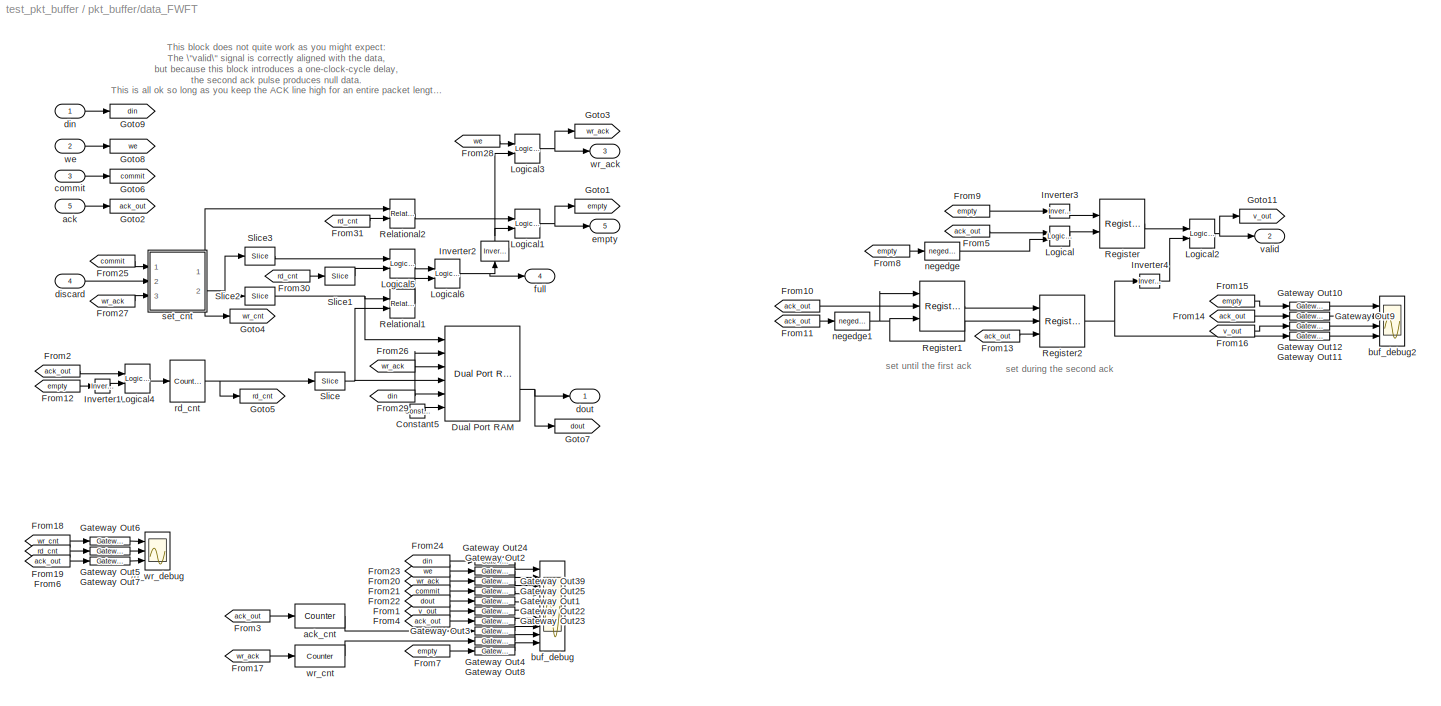
BLOCK [SubSystem] pkt_buffer/data_FWFT
  AttributesFormatString = Depth: 1024
  MaskDescription = A rollback fifo behaves as a normal fifo, except that data which are written in have to be \"committed\" before they become available for readout.  Moreover, any data which are written in and have not been committed can be \"discarded\", and will never be made available for readout.
  MaskEnableString = on
  MaskIconFrame = on
  MaskIconOpaque = on
  MaskIconRotate = none
  MaskIconUnits = autoscale
  MaskInitialization = fmtstr = sprintf('Depth: %d', 2^depth_bits);\nset_param(gcb, 'AttributesFormatString', fmtstr);
  MaskPromptString = Fifo Depth (2^?):
  MaskStyleString = edit
  MaskToolTipString = on
  MaskTunableValueString = on
  MaskValueString = depth_data_bits
  MaskVariables = depth_bits=@1;
  MaskVisibilityString = on
  MinAlgLoopOccurrences = off
  Ports = [5, 5]
  RTWSystemCode = Auto
  TreatAsAtomicUnit = off
BLOCK [Reference] pkt_buffer/data_FWFT/Constant5  REF=xbsIndex_r3/Constant
  Ports = [0, 1]
  SourceBlock = xbsIndex_r3/Constant
  SourceType = Xilinx Constant Block
  arith_type = Boolean
  bin_pt = 0
  carry = CIN
  const = 0
  dbl_ovrd = off
  equ = P=C
  explicit_period = on
  inp1 = P
  inp2 = PCIN>>17
  iostate = 0
  n_bits = 1
  opr = +
  opselect = C
  period = 1
BLOCK [Reference] pkt_buffer/data_FWFT/Dual Port RAM  REF=xbsIndex_r3/Dual Port RAM
  Ports = [6, 2]
  SourceBlock = xbsIndex_r3/Dual Port RAM
  SourceType = Xilinx Dual Port Random Access Memory
  dbl_ovrd = off
  depth = 2^depth_bits
  distributed_mem = off
  explicit_period = off
  gen_core = off
  initVector = 0
  init_a = 0
  init_b = 0
  init_zero = on
  latency = 1
  mem_collision = off
  period = 1
  rst_a = off
  rst_b = off
  show_param = off
  use_rpm = off
  write_mode_A = Read Before Write
  write_mode_B = Read Before Write
  xl_area = [0, 0, 0, 0, 0, 0, 0]
  xl_use_area = off
BLOCK [From] pkt_buffer/data_FWFT/From1
  CloseFcn = tagdialog Close
  GotoTag = v_out
BLOCK [From] pkt_buffer/data_FWFT/From10
  CloseFcn = tagdialog Close
  GotoTag = ack_out
BLOCK [From] pkt_buffer/data_FWFT/From11
  CloseFcn = tagdialog Close
  GotoTag = ack_out
BLOCK [From] pkt_buffer/data_FWFT/From12
  CloseFcn = tagdialog Close
  GotoTag = empty
BLOCK [From] pkt_buffer/data_FWFT/From13
  CloseFcn = tagdialog Close
  GotoTag = ack_out
BLOCK [From] pkt_buffer/data_FWFT/From14
  CloseFcn = tagdialog Close
  GotoTag = ack_out
BLOCK [From] pkt_buffer/data_FWFT/From15
  CloseFcn = tagdialog Close
  GotoTag = empty
BLOCK [From] pkt_buffer/data_FWFT/From16
  CloseFcn = tagdialog Close
  GotoTag = v_out
BLOCK [From] pkt_buffer/data_FWFT/From17
  CloseFcn = tagdialog Close
  GotoTag = wr_ack
BLOCK [From] pkt_buffer/data_FWFT/From18
  CloseFcn = tagdialog Close
  GotoTag = wr_cnt
BLOCK [From] pkt_buffer/data_FWFT/From19
  CloseFcn = tagdialog Close
  GotoTag = rd_cnt
BLOCK [From] pkt_buffer/data_FWFT/From2
  CloseFcn = tagdialog Close
  GotoTag = ack_out
BLOCK [From] pkt_buffer/data_FWFT/From20
  CloseFcn = tagdialog Close
  GotoTag = wr_ack
BLOCK [From] pkt_buffer/data_FWFT/From21
  CloseFcn = tagdialog Close
  GotoTag = commit
BLOCK [From] pkt_buffer/data_FWFT/From22
  CloseFcn = tagdialog Close
  GotoTag = dout
BLOCK [From] pkt_buffer/data_FWFT/From23
  CloseFcn = tagdialog Close
  GotoTag = we
BLOCK [From] pkt_buffer/data_FWFT/From24
  CloseFcn = tagdialog Close
  GotoTag = din
BLOCK [From] pkt_buffer/data_FWFT/From25
  CloseFcn = tagdialog Close
  GotoTag = commit
BLOCK [From] pkt_buffer/data_FWFT/From26
  CloseFcn = tagdialog Close
  GotoTag = wr_ack
BLOCK [From] pkt_buffer/data_FWFT/From27
  CloseFcn = tagdialog Close
  GotoTag = wr_ack
BLOCK [From] pkt_buffer/data_FWFT/From28
  CloseFcn = tagdialog Close
  GotoTag = we
BLOCK [From] pkt_buffer/data_FWFT/From29
  CloseFcn = tagdialog Close
  GotoTag = din
BLOCK [From] pkt_buffer/data_FWFT/From3
  CloseFcn = tagdialog Close
  GotoTag = ack_out
BLOCK [From] pkt_buffer/data_FWFT/From30
  CloseFcn = tagdialog Close
  GotoTag = rd_cnt
BLOCK [From] pkt_buffer/data_FWFT/From31
  CloseFcn = tagdialog Close
  GotoTag = rd_cnt
BLOCK [From] pkt_buffer/data_FWFT/From4
  CloseFcn = tagdialog Close
  GotoTag = ack_out
BLOCK [From] pkt_buffer/data_FWFT/From5
  CloseFcn = tagdialog Close
  GotoTag = ack_out
BLOCK [From] pkt_buffer/data_FWFT/From6
  CloseFcn = tagdialog Close
  GotoTag = ack_out
BLOCK [From] pkt_buffer/data_FWFT/From7
  CloseFcn = tagdialog Close
  GotoTag = empty
BLOCK [From] pkt_buffer/data_FWFT/From8
  CloseFcn = tagdialog Close
  GotoTag = empty
BLOCK [From] pkt_buffer/data_FWFT/From9
  CloseFcn = tagdialog Close
  GotoTag = empty
BLOCK [Reference] pkt_buffer/data_FWFT/Gateway Out1  REF=xbsIndex_r3/Gateway Out
  LOCs = {}
  Ports = [1, 1]
  SourceBlock = xbsIndex_r3/Gateway Out
  SourceType = Xilinx Gateway Out
  arith_type = Boolean
  bin_pt = 6
  hdl_port = on
  locs_specified = off
  nbits = 8
  needs_fixed_name = off
  output_type = Double
  overflow = Wrap
  quantization = Truncate
  show_param = off
  timing_constraint = None
  xl_area = [0, 0, 0, 0, 0, 0, 0]
  xl_use_area = off
BLOCK [Reference] pkt_buffer/data_FWFT/Gateway Out10  REF=xbsIndex_r3/Gateway Out
  LOCs = {}
  Ports = [1, 1]
  SourceBlock = xbsIndex_r3/Gateway Out
  SourceType = Xilinx Gateway Out
  arith_type = Boolean
  bin_pt = 6
  hdl_port = on
  locs_specified = off
  nbits = 8
  needs_fixed_name = off
  output_type = Double
  overflow = Wrap
  quantization = Truncate
  show_param = off
  timing_constraint = None
  xl_area = [0, 0, 0, 0, 0, 0, 0]
  xl_use_area = off
BLOCK [Reference] pkt_buffer/data_FWFT/Gateway Out11  REF=xbsIndex_r3/Gateway Out
  LOCs = {}
  Ports = [1, 1]
  SourceBlock = xbsIndex_r3/Gateway Out
  SourceType = Xilinx Gateway Out
  arith_type = Boolean
  bin_pt = 6
  hdl_port = on
  locs_specified = off
  nbits = 8
  needs_fixed_name = off
  output_type = Double
  overflow = Wrap
  quantization = Truncate
  show_param = off
  timing_constraint = None
  xl_area = [0, 0, 0, 0, 0, 0, 0]
  xl_use_area = off
BLOCK [Reference] pkt_buffer/data_FWFT/Gateway Out12  REF=xbsIndex_r3/Gateway Out
  LOCs = {}
  Ports = [1, 1]
  SourceBlock = xbsIndex_r3/Gateway Out
  SourceType = Xilinx Gateway Out
  arith_type = Boolean
  bin_pt = 6
  hdl_port = on
  locs_specified = off
  nbits = 8
  needs_fixed_name = off
  output_type = Double
  overflow = Wrap
  quantization = Truncate
  show_param = off
  timing_constraint = None
  xl_area = [0, 0, 0, 0, 0, 0, 0]
  xl_use_area = off
BLOCK [Reference] pkt_buffer/data_FWFT/Gateway Out2  REF=xbsIndex_r3/Gateway Out
  LOCs = {}
  Ports = [1, 1]
  SourceBlock = xbsIndex_r3/Gateway Out
  SourceType = Xilinx Gateway Out
  arith_type = Boolean
  bin_pt = 6
  hdl_port = on
  locs_specified = off
  nbits = 8
  needs_fixed_name = off
  output_type = Double
  overflow = Wrap
  quantization = Truncate
  show_param = off
  timing_constraint = None
  xl_area = [0, 0, 0, 0, 0, 0, 0]
  xl_use_area = off
BLOCK [Reference] pkt_buffer/data_FWFT/Gateway Out22  REF=xbsIndex_r3/Gateway Out
  LOCs = {}
  Ports = [1, 1]
  SourceBlock = xbsIndex_r3/Gateway Out
  SourceType = Xilinx Gateway Out
  arith_type = Boolean
  bin_pt = 6
  hdl_port = on
  locs_specified = off
  nbits = 8
  needs_fixed_name = off
  output_type = Double
  overflow = Wrap
  quantization = Truncate
  show_param = off
  timing_constraint = None
  xl_area = [0, 0, 0, 0, 0, 0, 0]
  xl_use_area = off
BLOCK [Reference] pkt_buffer/data_FWFT/Gateway Out23  REF=xbsIndex_r3/Gateway Out
  LOCs = {}
  Ports = [1, 1]
  SourceBlock = xbsIndex_r3/Gateway Out
  SourceType = Xilinx Gateway Out
  arith_type = Boolean
  bin_pt = 6
  hdl_port = on
  locs_specified = off
  nbits = 8
  needs_fixed_name = off
  output_type = Double
  overflow = Wrap
  quantization = Truncate
  show_param = off
  timing_constraint = None
  xl_area = [0, 0, 0, 0, 0, 0, 0]
  xl_use_area = off
BLOCK [Reference] pkt_buffer/data_FWFT/Gateway Out24  REF=xbsIndex_r3/Gateway Out
  LOCs = {}
  Ports = [1, 1]
  SourceBlock = xbsIndex_r3/Gateway Out
  SourceType = Xilinx Gateway Out
  arith_type = Boolean
  bin_pt = 6
  hdl_port = on
  locs_specified = off
  nbits = 8
  needs_fixed_name = off
  output_type = Double
  overflow = Wrap
  quantization = Truncate
  show_param = off
  timing_constraint = None
  xl_area = [0, 0, 0, 0, 0, 0, 0]
  xl_use_area = off
BLOCK [Reference] pkt_buffer/data_FWFT/Gateway Out25  REF=xbsIndex_r3/Gateway Out
  LOCs = {}
  Ports = [1, 1]
  SourceBlock = xbsIndex_r3/Gateway Out
  SourceType = Xilinx Gateway Out
  arith_type = Boolean
  bin_pt = 6
  hdl_port = on
  locs_specified = off
  nbits = 8
  needs_fixed_name = off
  output_type = Double
  overflow = Wrap
  quantization = Truncate
  show_param = off
  timing_constraint = None
  xl_area = [0, 0, 0, 0, 0, 0, 0]
  xl_use_area = off
BLOCK [Reference] pkt_buffer/data_FWFT/Gateway Out3  REF=xbsIndex_r3/Gateway Out
  LOCs = {}
  Ports = [1, 1]
  SourceBlock = xbsIndex_r3/Gateway Out
  SourceType = Xilinx Gateway Out
  arith_type = Boolean
  bin_pt = 6
  hdl_port = on
  locs_specified = off
  nbits = 8
  needs_fixed_name = off
  output_type = Double
  overflow = Wrap
  quantization = Truncate
  show_param = off
  timing_constraint = None
  xl_area = [0, 0, 0, 0, 0, 0, 0]
  xl_use_area = off
BLOCK [Reference] pkt_buffer/data_FWFT/Gateway Out39  REF=xbsIndex_r3/Gateway Out
  LOCs = {}
  Ports = [1, 1]
  SourceBlock = xbsIndex_r3/Gateway Out
  SourceType = Xilinx Gateway Out
  arith_type = Boolean
  bin_pt = 6
  hdl_port = on
  locs_specified = off
  nbits = 8
  needs_fixed_name = off
  output_type = Double
  overflow = Wrap
  quantization = Truncate
  show_param = off
  timing_constraint = None
  xl_area = [0, 0, 0, 0, 0, 0, 0]
  xl_use_area = off
BLOCK [Reference] pkt_buffer/data_FWFT/Gateway Out4  REF=xbsIndex_r3/Gateway Out
  LOCs = {}
  Ports = [1, 1]
  SourceBlock = xbsIndex_r3/Gateway Out
  SourceType = Xilinx Gateway Out
  arith_type = Boolean
  bin_pt = 6
  hdl_port = on
  locs_specified = off
  nbits = 8
  needs_fixed_name = off
  output_type = Double
  overflow = Wrap
  quantization = Truncate
  show_param = off
  timing_constraint = None
  xl_area = [0, 0, 0, 0, 0, 0, 0]
  xl_use_area = off
BLOCK [Reference] pkt_buffer/data_FWFT/Gateway Out5  REF=xbsIndex_r3/Gateway Out
  LOCs = {}
  Ports = [1, 1]
  SourceBlock = xbsIndex_r3/Gateway Out
  SourceType = Xilinx Gateway Out
  arith_type = Boolean
  bin_pt = 6
  hdl_port = on
  locs_specified = off
  nbits = 8
  needs_fixed_name = off
  output_type = Double
  overflow = Wrap
  quantization = Truncate
  show_param = off
  timing_constraint = None
  xl_area = [0, 0, 0, 0, 0, 0, 0]
  xl_use_area = off
BLOCK [Reference] pkt_buffer/data_FWFT/Gateway Out6  REF=xbsIndex_r3/Gateway Out
  LOCs = {}
  Ports = [1, 1]
  SourceBlock = xbsIndex_r3/Gateway Out
  SourceType = Xilinx Gateway Out
  arith_type = Boolean
  bin_pt = 6
  hdl_port = on
  locs_specified = off
  nbits = 8
  needs_fixed_name = off
  output_type = Double
  overflow = Wrap
  quantization = Truncate
  show_param = off
  timing_constraint = None
  xl_area = [0, 0, 0, 0, 0, 0, 0]
  xl_use_area = off
BLOCK [Reference] pkt_buffer/data_FWFT/Gateway Out7  REF=xbsIndex_r3/Gateway Out
  LOCs = {}
  Ports = [1, 1]
  SourceBlock = xbsIndex_r3/Gateway Out
  SourceType = Xilinx Gateway Out
  arith_type = Boolean
  bin_pt = 6
  hdl_port = on
  locs_specified = off
  nbits = 8
  needs_fixed_name = off
  output_type = Double
  overflow = Wrap
  quantization = Truncate
  show_param = off
  timing_constraint = None
  xl_area = [0, 0, 0, 0, 0, 0, 0]
  xl_use_area = off
BLOCK [Reference] pkt_buffer/data_FWFT/Gateway Out8  REF=xbsIndex_r3/Gateway Out
  LOCs = {}
  Ports = [1, 1]
  SourceBlock = xbsIndex_r3/Gateway Out
  SourceType = Xilinx Gateway Out
  arith_type = Boolean
  bin_pt = 6
  hdl_port = on
  locs_specified = off
  nbits = 8
  needs_fixed_name = off
  output_type = Double
  overflow = Wrap
  quantization = Truncate
  show_param = off
  timing_constraint = None
  xl_area = [0, 0, 0, 0, 0, 0, 0]
  xl_use_area = off
BLOCK [Reference] pkt_buffer/data_FWFT/Gateway Out9  REF=xbsIndex_r3/Gateway Out
  LOCs = {}
  Ports = [1, 1]
  SourceBlock = xbsIndex_r3/Gateway Out
  SourceType = Xilinx Gateway Out
  arith_type = Boolean
  bin_pt = 6
  hdl_port = on
  locs_specified = off
  nbits = 8
  needs_fixed_name = off
  output_type = Double
  overflow = Wrap
  quantization = Truncate
  show_param = off
  timing_constraint = None
  xl_area = [0, 0, 0, 0, 0, 0, 0]
  xl_use_area = off
BLOCK [Goto] pkt_buffer/data_FWFT/Goto1
  GotoTag = empty
  TagVisibility = local
BLOCK [Goto] pkt_buffer/data_FWFT/Goto11
  GotoTag = v_out
  TagVisibility = local
BLOCK [Goto] pkt_buffer/data_FWFT/Goto2
  GotoTag = ack_out
  TagVisibility = local
BLOCK [Goto] pkt_buffer/data_FWFT/Goto3
  GotoTag = wr_ack
  TagVisibility = local
BLOCK [Goto] pkt_buffer/data_FWFT/Goto4
  GotoTag = wr_cnt
  TagVisibility = local
BLOCK [Goto] pkt_buffer/data_FWFT/Goto5
  GotoTag = rd_cnt
  TagVisibility = local
BLOCK [Goto] pkt_buffer/data_FWFT/Goto6
  GotoTag = commit
  TagVisibility = local
BLOCK [Goto] pkt_buffer/data_FWFT/Goto7
  GotoTag = dout
  TagVisibility = local
BLOCK [Goto] pkt_buffer/data_FWFT/Goto8
  GotoTag = we
  TagVisibility = local
BLOCK [Goto] pkt_buffer/data_FWFT/Goto9
  GotoTag = din
  TagVisibility = local
BLOCK [Reference] pkt_buffer/data_FWFT/Inverter1  REF=xbsIndex_r3/Inverter
  Ports = [1, 1]
  SourceBlock = xbsIndex_r3/Inverter
  SourceType = Xilinx Inverter
  dbl_ovrd = off
  en = off
  explicit_period = off
  latency = 0
  period = 1
  show_param = off
  xl_area = [0, 0, 0, 0, 0, 0, 0]
  xl_use_area = off
BLOCK [Reference] pkt_buffer/data_FWFT/Inverter2  REF=xbsIndex_r3/Inverter
  Ports = [1, 1]
  SourceBlock = xbsIndex_r3/Inverter
  SourceType = Xilinx Inverter
  dbl_ovrd = off
  en = off
  explicit_period = off
  latency = 0
  period = 1
  show_param = off
  xl_area = [0, 0, 0, 0, 0, 0, 0]
  xl_use_area = off
BLOCK [Reference] pkt_buffer/data_FWFT/Inverter3  REF=xbsIndex_r3/Inverter
  Ports = [1, 1]
  SourceBlock = xbsIndex_r3/Inverter
  SourceType = Xilinx Inverter
  dbl_ovrd = off
  en = off
  explicit_period = off
  latency = 0
  period = 1
  show_param = off
  xl_area = [0, 0, 0, 0, 0, 0, 0]
  xl_use_area = off
BLOCK [Reference] pkt_buffer/data_FWFT/Inverter4  REF=xbsIndex_r3/Inverter
  Ports = [1, 1]
  SourceBlock = xbsIndex_r3/Inverter
  SourceType = Xilinx Inverter
  dbl_ovrd = off
  en = off
  explicit_period = off
  latency = 0
  period = 1
  show_param = off
  xl_area = [0, 0, 0, 0, 0, 0, 0]
  xl_use_area = off
BLOCK [Reference] pkt_buffer/data_FWFT/Logical  REF=xbsIndex_r3/Logical
  Ports = [2, 1]
  SourceBlock = xbsIndex_r3/Logical
  SourceType = Xilinx Logical Block
  align_bp = on
  arith_type = Unsigned
  bin_pt = 2
  dbl_ovrd = off
  en = off
  explicit_period = off
  inputs = 2
  latency = 0
  logical_function = OR
  n_bits = 8
  period = 1
  precision = Full
  show_param = off
  xl_area = [0, 0, 0, 0, 0, 0, 0]
  xl_use_area = off
BLOCK [Reference] pkt_buffer/data_FWFT/Logical1  REF=xbsIndex_r3/Logical
  Ports = [2, 1]
  SourceBlock = xbsIndex_r3/Logical
  SourceType = Xilinx Logical Block
  align_bp = on
  arith_type = Unsigned
  bin_pt = 2
  dbl_ovrd = off
  en = off
  explicit_period = on
  inputs = 2
  latency = 0
  logical_function = AND
  n_bits = 8
  period = 1
  precision = Full
  show_param = off
  xl_area = [0, 0, 0, 0, 0, 0, 0]
  xl_use_area = off
BLOCK [Reference] pkt_buffer/data_FWFT/Logical2  REF=xbsIndex_r3/Logical
  Ports = [2, 1]
  SourceBlock = xbsIndex_r3/Logical
  SourceType = Xilinx Logical Block
  align_bp = on
  arith_type = Unsigned
  bin_pt = 2
  dbl_ovrd = off
  en = off
  explicit_period = on
  inputs = 2
  latency = 0
  logical_function = AND
  n_bits = 8
  period = 1
  precision = Full
  show_param = off
  xl_area = [0, 0, 0, 0, 0, 0, 0]
  xl_use_area = off
BLOCK [Reference] pkt_buffer/data_FWFT/Logical3  REF=xbsIndex_r3/Logical
  Ports = [2, 1]
  SourceBlock = xbsIndex_r3/Logical
  SourceType = Xilinx Logical Block
  align_bp = on
  arith_type = Unsigned
  bin_pt = 2
  dbl_ovrd = off
  en = off
  explicit_period = off
  inputs = 2
  latency = 0
  logical_function = AND
  n_bits = 8
  period = 1
  precision = Full
  show_param = off
  xl_area = [0, 0, 0, 0, 0, 0, 0]
  xl_use_area = off
BLOCK [Reference] pkt_buffer/data_FWFT/Logical4  REF=xbsIndex_r3/Logical
  Ports = [2, 1]
  SourceBlock = xbsIndex_r3/Logical
  SourceType = Xilinx Logical Block
  align_bp = on
  arith_type = Unsigned
  bin_pt = 2
  dbl_ovrd = off
  en = off
  explicit_period = off
  inputs = 2
  latency = 0
  logical_function = AND
  n_bits = 8
  period = 1
  precision = Full
  show_param = off
  xl_area = [0, 0, 0, 0, 0, 0, 0]
  xl_use_area = off
BLOCK [Reference] pkt_buffer/data_FWFT/Logical5  REF=xbsIndex_r3/Logical
  Ports = [2, 1]
  SourceBlock = xbsIndex_r3/Logical
  SourceType = Xilinx Logical Block
  align_bp = on
  arith_type = Unsigned
  bin_pt = 2
  dbl_ovrd = off
  en = off
  explicit_period = off
  inputs = 2
  latency = 0
  logical_function = XOR
  n_bits = 8
  period = 1
  precision = Full
  show_param = off
  xl_area = [0, 0, 0, 0, 0, 0, 0]
  xl_use_area = off
BLOCK [Reference] pkt_buffer/data_FWFT/Logical6  REF=xbsIndex_r3/Logical
  Ports = [2, 1]
  SourceBlock = xbsIndex_r3/Logical
  SourceType = Xilinx Logical Block
  align_bp = on
  arith_type = Unsigned
  bin_pt = 2
  dbl_ovrd = off
  en = off
  explicit_period = off
  inputs = 2
  latency = 0
  logical_function = AND
  n_bits = 8
  period = 1
  precision = Full
  show_param = off
  xl_area = [0, 0, 0, 0, 0, 0, 0]
  xl_use_area = off
BLOCK [Reference] pkt_buffer/data_FWFT/Register  REF=xbsIndex_r3/Register
  Ports = [2, 1]
  SourceBlock = xbsIndex_r3/Register
  SourceType = Xilinx Register Block
  dbl_ovrd = off
  en = on
  explicit_period = on
  init = 0
  out_en = off
  period = 1
  reg_only_valid = off
  rst = off
  show_param = off
  xl_area = [0, 0, 0, 0, 0, 0, 0]
  xl_use_area = off
BLOCK [Reference] pkt_buffer/data_FWFT/Register1  REF=xbsIndex_r3/Register
  Ports = [3, 1]
  SourceBlock = xbsIndex_r3/Register
  SourceType = Xilinx Register Block
  dbl_ovrd = off
  en = on
  explicit_period = on
  init = 0
  out_en = off
  period = 1
  reg_only_valid = off
  rst = on
  show_param = off
  xl_area = [0, 0, 0, 0, 0, 0, 0]
  xl_use_area = off
BLOCK [Reference] pkt_buffer/data_FWFT/Register2  REF=xbsIndex_r3/Register
  Ports = [3, 1]
  SourceBlock = xbsIndex_r3/Register
  SourceType = Xilinx Register Block
  dbl_ovrd = off
  en = on
  explicit_period = on
  init = 0
  out_en = off
  period = 1
  reg_only_valid = off
  rst = on
  show_param = off
  xl_area = [0, 0, 0, 0, 0, 0, 0]
  xl_use_area = off
BLOCK [Reference] pkt_buffer/data_FWFT/Relational1  REF=xbsIndex_r3/Relational
  Ports = [2, 1]
  SourceBlock = xbsIndex_r3/Relational
  SourceType = Xilinx Relational Block
  dbl_ovrd = off
  en = off
  explicit_period = on
  latency = 0
  mode = a=b
  period = 1
  show_param = off
  xl_area = [0, 0, 0, 0, 0, 0, 0]
  xl_use_area = off
BLOCK [Reference] pkt_buffer/data_FWFT/Relational2  REF=xbsIndex_r3/Relational
  Ports = [2, 1]
  SourceBlock = xbsIndex_r3/Relational
  SourceType = Xilinx Relational Block
  dbl_ovrd = off
  en = off
  explicit_period = on
  latency = 0
  mode = a=b
  period = 1
  show_param = off
  xl_area = [0, 0, 0, 0, 0, 0, 0]
  xl_use_area = off
BLOCK [Reference] pkt_buffer/data_FWFT/Slice  REF=xbsIndex_r3/Slice
  Ports = [1, 1]
  SourceBlock = xbsIndex_r3/Slice
  SourceType = Xilinx Slice Block
  base0 = LSB of Input
  base1 = MSB of Input
  bit0 = 0
  bit1 = -1
  boolean_output = off
  dbl_ovrd = off
  explicit_period = off
  mode = Two Bit Locations
  nbits = 1
  period = 1
BLOCK [Reference] pkt_buffer/data_FWFT/Slice1  REF=xbsIndex_r3/Slice
  Ports = [1, 1]
  SourceBlock = xbsIndex_r3/Slice
  SourceType = Xilinx Slice Block
  base0 = LSB of Input
  base1 = MSB of Input
  bit0 = 0
  bit1 = 0
  boolean_output = on
  dbl_ovrd = off
  explicit_period = off
  mode = Upper Bit Location + Width
  nbits = 1
  period = 1
BLOCK [Reference] pkt_buffer/data_FWFT/Slice2  REF=xbsIndex_r3/Slice
  Ports = [1, 1]
  SourceBlock = xbsIndex_r3/Slice
  SourceType = Xilinx Slice Block
  base0 = LSB of Input
  base1 = MSB of Input
  bit0 = 0
  bit1 = -1
  boolean_output = off
  dbl_ovrd = off
  explicit_period = off
  mode = Two Bit Locations
  nbits = 1
  period = 1
BLOCK [Reference] pkt_buffer/data_FWFT/Slice3  REF=xbsIndex_r3/Slice
  Ports = [1, 1]
  SourceBlock = xbsIndex_r3/Slice
  SourceType = Xilinx Slice Block
  base0 = LSB of Input
  base1 = MSB of Input
  bit0 = 0
  bit1 = 0
  boolean_output = on
  dbl_ovrd = off
  explicit_period = off
  mode = Upper Bit Location + Width
  nbits = 1
  period = 1
BLOCK [Inport] pkt_buffer/data_FWFT/ack
  IconDisplay = Port number
  LatchInput = off
  Port = 5
BLOCK [Reference] pkt_buffer/data_FWFT/ack_cnt  REF=xbsIndex_r3/Counter
  Ports = [1, 1]
  SourceBlock = xbsIndex_r3/Counter
  SourceType = Xilinx Counter Block
  arith_type = Unsigned
  bin_pt = 0
  cnt_by_val = 1
  cnt_to = Inf
  cnt_type = Free Running
  dbl_ovrd = off
  en = on
  explicit_period = on
  gen_core = off
  load_pin = off
  n_bits = depth_bits + 1
  operation = Up
  period = 1
  rst = off
  show_param = off
  start_count = 0
  use_rpm = on
  xl_area = [0, 0, 0, 0, 0, 0, 0]
  xl_use_area = off
BLOCK [Scope] pkt_buffer/data_FWFT/buf_debug
  DataFormat = StructureWithTime
  LimitDataPoints = off
  NumInputPorts = 10
  Ports = [10]
  SaveName = ScopeData13
  YMax = 13300~1~10500~1~17250~5~5~5~5~5
  YMin = 12000~0~9500~0~15500~-5~-5~-5~-5~-5
  ZoomMode = yonly
BLOCK [Scope] pkt_buffer/data_FWFT/buf_debug2
  DataFormat = StructureWithTime
  LimitDataPoints = off
  NumInputPorts = 4
  Ports = [4]
  SaveName = ScopeData15
  YMax = 1~1~1~1
  YMin = 0~1~0~-1
  ZoomMode = xonly
BLOCK [Inport] pkt_buffer/data_FWFT/commit
  IconDisplay = Port number
  LatchInput = off
  Port = 3
BLOCK [Inport] pkt_buffer/data_FWFT/din
  IconDisplay = Port number
  LatchInput = off
  Port = 1
BLOCK [Inport] pkt_buffer/data_FWFT/discard
  IconDisplay = Port number
  LatchInput = off
  Port = 4
BLOCK [Outport] pkt_buffer/data_FWFT/dout
  BusOutputAsStruct = off
  IconDisplay = Port number
BLOCK [Outport] pkt_buffer/data_FWFT/empty
  BusOutputAsStruct = off
  IconDisplay = Port number
  Port = 5
BLOCK [Outport] pkt_buffer/data_FWFT/full
  BusOutputAsStruct = off
  IconDisplay = Port number
  Port = 4
BLOCK [Reference] pkt_buffer/data_FWFT/negedge  REF=casper_library/Misc/negedge  (lib defined in mdl_138b2fc3435f, mdl_4ed325b712b3, +2 more)
  Ports = [1, 1]
  ShowPortLabels = on
  SourceBlock = casper_library/Misc/negedge
  SourceType = negedge
  Tag = Rising Edge Detector
BLOCK [Reference] pkt_buffer/data_FWFT/negedge1  REF=casper_library/Misc/negedge  (lib defined in mdl_138b2fc3435f, mdl_4ed325b712b3, +2 more)
  Ports = [1, 1]
  ShowPortLabels = on
  SourceBlock = casper_library/Misc/negedge
  SourceType = negedge
  Tag = Rising Edge Detector
BLOCK [Reference] pkt_buffer/data_FWFT/rd_cnt  REF=xbsIndex_r3/Counter
  Ports = [1, 1]
  SourceBlock = xbsIndex_r3/Counter
  SourceType = Xilinx Counter Block
  arith_type = Unsigned
  bin_pt = 0
  cnt_by_val = 1
  cnt_to = Inf
  cnt_type = Free Running
  dbl_ovrd = off
  en = on
  explicit_period = on
  gen_core = off
  load_pin = off
  n_bits = depth_bits + 1
  operation = Up
  period = 1
  rst = off
  show_param = off
  start_count = 0
  use_rpm = on
  xl_area = [0, 0, 0, 0, 0, 0, 0]
  xl_use_area = off
BLOCK [Scope] pkt_buffer/data_FWFT/rd_wr_debug
  DataFormat = StructureWithTime
  LimitDataPoints = off
  NumInputPorts = 3
  Ports = [3]
  SaveName = ScopeData14
  YMax = 13300~1~5
  YMin = 12000~0~-5
  ZoomMode = yonly
BLOCK [SubSystem] pkt_buffer/data_FWFT/set_cnt
  MinAlgLoopOccurrences = off
  Ports = [3, 2]
  RTWSystemCode = Auto
  TreatAsAtomicUnit = off
BLOCK [Reference] pkt_buffer/data_FWFT/set_cnt/Counter4  REF=xbsIndex_r3/Counter
  Ports = [3, 1]
  SourceBlock = xbsIndex_r3/Counter
  SourceType = Xilinx Counter Block
  arith_type = Unsigned
  bin_pt = 0
  cnt_by_val = 1
  cnt_to = Inf
  cnt_type = Free Running
  dbl_ovrd = off
  en = on
  explicit_period = on
  gen_core = off
  load_pin = on
  n_bits = depth_bits + 1
  operation = Up
  period = 1
  rst = off
  show_param = off
  start_count = 0
  use_rpm = on
  xl_area = [0, 0, 0, 0, 0, 0, 0]
  xl_use_area = off
BLOCK [Reference] pkt_buffer/data_FWFT/set_cnt/Inverter  REF=xbsIndex_r3/Inverter
  Ports = [1, 1]
  SourceBlock = xbsIndex_r3/Inverter
  SourceType = Xilinx Inverter
  dbl_ovrd = off
  en = off
  explicit_period = off
  latency = 0
  period = 1
  show_param = off
  xl_area = [0, 0, 0, 0, 0, 0, 0]
  xl_use_area = off
BLOCK [Reference] pkt_buffer/data_FWFT/set_cnt/Inverter1  REF=xbsIndex_r3/Inverter
  Ports = [1, 1]
  SourceBlock = xbsIndex_r3/Inverter
  SourceType = Xilinx Inverter
  dbl_ovrd = off
  en = off
  explicit_period = off
  latency = 0
  period = 1
  show_param = off
  xl_area = [0, 0, 0, 0, 0, 0, 0]
  xl_use_area = off
BLOCK [Reference] pkt_buffer/data_FWFT/set_cnt/Logical1  REF=xbsIndex_r3/Logical
  Ports = [3, 1]
  SourceBlock = xbsIndex_r3/Logical
  SourceType = Xilinx Logical Block
  align_bp = on
  arith_type = Unsigned
  bin_pt = 2
  dbl_ovrd = off
  en = off
  explicit_period = off
  inputs = 3
  latency = 0
  logical_function = AND
  n_bits = 8
  period = 1
  precision = Full
  show_param = off
  xl_area = [0, 0, 0, 0, 0, 0, 0]
  xl_use_area = off
BLOCK [Reference] pkt_buffer/data_FWFT/set_cnt/Logical4  REF=xbsIndex_r3/Logical
  Ports = [3, 1]
  SourceBlock = xbsIndex_r3/Logical
  SourceType = Xilinx Logical Block
  align_bp = on
  arith_type = Unsigned
  bin_pt = 2
  dbl_ovrd = off
  en = off
  explicit_period = off
  inputs = 3
  latency = 1
  logical_function = AND
  n_bits = 8
  period = 1
  precision = Full
  show_param = off
  xl_area = [0, 0, 0, 0, 0, 0, 0]
  xl_use_area = off
BLOCK [Reference] pkt_buffer/data_FWFT/set_cnt/Register2  REF=xbsIndex_r3/Register
  Ports = [2, 1]
  SourceBlock = xbsIndex_r3/Register
  SourceType = Xilinx Register Block
  dbl_ovrd = off
  en = on
  explicit_period = off
  init = 0
  out_en = off
  period = 1
  reg_only_valid = off
  rst = off
  show_param = off
  xl_area = [0, 0, 0, 0, 0, 0, 0]
  xl_use_area = off
BLOCK [Outport] pkt_buffer/data_FWFT/set_cnt/cnt
  BusOutputAsStruct = off
  IconDisplay = Port number
  Port = 2
BLOCK [Inport] pkt_buffer/data_FWFT/set_cnt/en
  IconDisplay = Port number
  LatchInput = off
  Port = 3
BLOCK [Inport] pkt_buffer/data_FWFT/set_cnt/set
  IconDisplay = Port number
  LatchInput = off
  Port = 1
BLOCK [Outport] pkt_buffer/data_FWFT/set_cnt/set_cnt
  BusOutputAsStruct = off
  IconDisplay = Port number
BLOCK [Inport] pkt_buffer/data_FWFT/set_cnt/undo
  IconDisplay = Port number
  LatchInput = off
  Port = 2
BLOCK [Outport] pkt_buffer/data_FWFT/valid
  BusOutputAsStruct = off
  IconDisplay = Port number
  Port = 2
BLOCK [Inport] pkt_buffer/data_FWFT/we
  IconDisplay = Port number
  LatchInput = off
  Port = 2
BLOCK [Outport] pkt_buffer/data_FWFT/wr_ack
  BusOutputAsStruct = off
  IconDisplay = Port number
  Port = 3
BLOCK [Reference] pkt_buffer/data_FWFT/wr_cnt  REF=xbsIndex_r3/Counter
  Ports = [1, 1]
  SourceBlock = xbsIndex_r3/Counter
  SourceType = Xilinx Counter Block
  arith_type = Unsigned
  bin_pt = 0
  cnt_by_val = 1
  cnt_to = Inf
  cnt_type = Free Running
  dbl_ovrd = off
  en = on
  explicit_period = on
  gen_core = off
  load_pin = off
  n_bits = depth_bits + 1
  operation = Up
  period = 1
  rst = off
  show_param = off
  start_count = 0
  use_rpm = on
  xl_area = [0, 0, 0, 0, 0, 0, 0]
  xl_use_area = off
BLOCK [Inport] pkt_buffer/dest_ip_0
  IconDisplay = Port number
  LatchInput = off
  Port = 3
BLOCK [Outport] pkt_buffer/discard
  BusOutputAsStruct = off
  IconDisplay = Port number
  Port = 5
BLOCK [Inport] pkt_buffer/discard_in
  IconDisplay = Port number
  LatchInput = off
  Port = 5
BLOCK [Outport] pkt_buffer/eof
  BusOutputAsStruct = off
  IconDisplay = Port number
  Port = 4
BLOCK [Inport] pkt_buffer/eof_in
  IconDisplay = Port number
  LatchInput = off
  Port = 4
BLOCK [Reference] pkt_buffer/fifo_empty  REF=xbsIndex_r3/Logical
  Ports = [2, 1]
  SourceBlock = xbsIndex_r3/Logical
  SourceType = Xilinx Logical Block
  align_bp = on
  arith_type = Unsigned
  bin_pt = 2
  dbl_ovrd = off
  en = off
  explicit_period = off
  inputs = 2
  latency = 0
  logical_function = AND
  n_bits = 8
  period = 1
  precision = Full
  show_param = off
  xl_area = [0, 0, 0, 0, 0, 0, 0]
  xl_use_area = off
BLOCK [Reference] pkt_buffer/fifo_full  REF=xbsIndex_r3/Logical
  Ports = [2, 1]
  SourceBlock = xbsIndex_r3/Logical
  SourceType = Xilinx Logical Block
  align_bp = on
  arith_type = Unsigned
  bin_pt = 2
  dbl_ovrd = off
  en = off
  explicit_period = off
  inputs = 2
  latency = 0
  logical_function = OR
  n_bits = 8
  period = 1
  precision = Full
  show_param = off
  xl_area = [0, 0, 0, 0, 0, 0, 0]
  xl_use_area = off
BLOCK [SubSystem] pkt_buffer/ip_FWFT
  AttributesFormatString = Depth: 16
  MaskDescription = A rollback fifo behaves as a normal fifo, except that data which are written in have to be \"committed\" before they become available for readout.  Moreover, any data which are written in and have not been committed can be \"discarded\", and will never be made available for readout.
  MaskEnableString = on
  MaskIconFrame = on
  MaskIconOpaque = on
  MaskIconRotate = none
  MaskIconUnits = autoscale
  MaskInitialization = fmtstr = sprintf('Depth: %d', 2^depth_bits);\nset_param(gcb, 'AttributesFormatString', fmtstr);
  MaskPromptString = Fifo Depth (2^?):
  MaskStyleString = edit
  MaskToolTipString = on
  MaskTunableValueString = on
  MaskValueString = depth_hdr_bits
  MaskVariables = depth_bits=@1;
  MaskVisibilityString = on
  MinAlgLoopOccurrences = off
  Ports = [5, 4]
  RTWSystemCode = Auto
  TreatAsAtomicUnit = off
BLOCK [Reference] pkt_buffer/ip_FWFT/Constant5  REF=xbsIndex_r3/Constant
  Ports = [0, 1]
  SourceBlock = xbsIndex_r3/Constant
  SourceType = Xilinx Constant Block
  arith_type = Boolean
  bin_pt = 0
  carry = CIN
  const = 0
  dbl_ovrd = off
  equ = P=C
  explicit_period = on
  inp1 = P
  inp2 = PCIN>>17
  iostate = 0
  n_bits = 1
  opr = +
  opselect = C
  period = 1
BLOCK [Reference] pkt_buffer/ip_FWFT/Dual Port RAM  REF=xbsIndex_r3/Dual Port RAM
  Ports = [6, 2]
  SourceBlock = xbsIndex_r3/Dual Port RAM
  SourceType = Xilinx Dual Port Random Access Memory
  dbl_ovrd = off
  depth = 2^depth_bits
  distributed_mem = off
  explicit_period = off
  gen_core = off
  initVector = 0
  init_a = 0
  init_b = 0
  init_zero = on
  latency = 1
  mem_collision = off
  period = 1
  rst_a = off
  rst_b = off
  show_param = off
  use_rpm = off
  write_mode_A = Read Before Write
  write_mode_B = Read Before Write
  xl_area = [0, 0, 0, 0, 0, 0, 0]
  xl_use_area = off
BLOCK [Reference] pkt_buffer/ip_FWFT/Inverter1  REF=xbsIndex_r3/Inverter
  Ports = [1, 1]
  SourceBlock = xbsIndex_r3/Inverter
  SourceType = Xilinx Inverter
  dbl_ovrd = off
  en = off
  explicit_period = off
  latency = 0
  period = 1
  show_param = off
  xl_area = [0, 0, 0, 0, 0, 0, 0]
  xl_use_area = off
BLOCK [Reference] pkt_buffer/ip_FWFT/Inverter2  REF=xbsIndex_r3/Inverter
  Ports = [1, 1]
  SourceBlock = xbsIndex_r3/Inverter
  SourceType = Xilinx Inverter
  dbl_ovrd = off
  en = off
  explicit_period = off
  latency = 0
  period = 1
  show_param = off
  xl_area = [0, 0, 0, 0, 0, 0, 0]
  xl_use_area = off
BLOCK [Reference] pkt_buffer/ip_FWFT/Logical1  REF=xbsIndex_r3/Logical
  Ports = [2, 1]
  SourceBlock = xbsIndex_r3/Logical
  SourceType = Xilinx Logical Block
  align_bp = on
  arith_type = Unsigned
  bin_pt = 2
  dbl_ovrd = off
  en = off
  explicit_period = off
  inputs = 2
  latency = 0
  logical_function = AND
  n_bits = 8
  period = 1
  precision = Full
  show_param = off
  xl_area = [0, 0, 0, 0, 0, 0, 0]
  xl_use_area = off
BLOCK [Reference] pkt_buffer/ip_FWFT/Logical3  REF=xbsIndex_r3/Logical
  Ports = [2, 1]
  SourceBlock = xbsIndex_r3/Logical
  SourceType = Xilinx Logical Block
  align_bp = on
  arith_type = Unsigned
  bin_pt = 2
  dbl_ovrd = off
  en = off
  explicit_period = off
  inputs = 2
  latency = 0
  logical_function = AND
  n_bits = 8
  period = 1
  precision = Full
  show_param = off
  xl_area = [0, 0, 0, 0, 0, 0, 0]
  xl_use_area = off
BLOCK [Reference] pkt_buffer/ip_FWFT/Logical4  REF=xbsIndex_r3/Logical
  Ports = [2, 1]
  SourceBlock = xbsIndex_r3/Logical
  SourceType = Xilinx Logical Block
  align_bp = on
  arith_type = Unsigned
  bin_pt = 2
  dbl_ovrd = off
  en = off
  explicit_period = off
  inputs = 2
  latency = 0
  logical_function = AND
  n_bits = 8
  period = 1
  precision = Full
  show_param = off
  xl_area = [0, 0, 0, 0, 0, 0, 0]
  xl_use_area = off
BLOCK [Reference] pkt_buffer/ip_FWFT/Logical5  REF=xbsIndex_r3/Logical
  Ports = [2, 1]
  SourceBlock = xbsIndex_r3/Logical
  SourceType = Xilinx Logical Block
  align_bp = on
  arith_type = Unsigned
  bin_pt = 2
  dbl_ovrd = off
  en = off
  explicit_period = off
  inputs = 2
  latency = 0
  logical_function = XOR
  n_bits = 8
  period = 1
  precision = Full
  show_param = off
  xl_area = [0, 0, 0, 0, 0, 0, 0]
  xl_use_area = off
BLOCK [Reference] pkt_buffer/ip_FWFT/Logical6  REF=xbsIndex_r3/Logical
  Ports = [2, 1]
  SourceBlock = xbsIndex_r3/Logical
  SourceType = Xilinx Logical Block
  align_bp = on
  arith_type = Unsigned
  bin_pt = 2
  dbl_ovrd = off
  en = off
  explicit_period = off
  inputs = 2
  latency = 0
  logical_function = AND
  n_bits = 8
  period = 1
  precision = Full
  show_param = off
  xl_area = [0, 0, 0, 0, 0, 0, 0]
  xl_use_area = off
BLOCK [Reference] pkt_buffer/ip_FWFT/Relational1  REF=xbsIndex_r3/Relational
  Ports = [2, 1]
  SourceBlock = xbsIndex_r3/Relational
  SourceType = Xilinx Relational Block
  dbl_ovrd = off
  en = off
  explicit_period = on
  latency = 0
  mode = a=b
  period = 1
  show_param = off
  xl_area = [0, 0, 0, 0, 0, 0, 0]
  xl_use_area = off
BLOCK [Reference] pkt_buffer/ip_FWFT/Relational2  REF=xbsIndex_r3/Relational
  Ports = [2, 1]
  SourceBlock = xbsIndex_r3/Relational
  SourceType = Xilinx Relational Block
  dbl_ovrd = off
  en = off
  explicit_period = on
  latency = 0
  mode = a=b
  period = 1
  show_param = off
  xl_area = [0, 0, 0, 0, 0, 0, 0]
  xl_use_area = off
BLOCK [Reference] pkt_buffer/ip_FWFT/Slice  REF=xbsIndex_r3/Slice
  Ports = [1, 1]
  SourceBlock = xbsIndex_r3/Slice
  SourceType = Xilinx Slice Block
  base0 = LSB of Input
  base1 = MSB of Input
  bit0 = 0
  bit1 = -1
  boolean_output = off
  dbl_ovrd = off
  explicit_period = off
  mode = Two Bit Locations
  nbits = 1
  period = 1
BLOCK [Reference] pkt_buffer/ip_FWFT/Slice1  REF=xbsIndex_r3/Slice
  Ports = [1, 1]
  SourceBlock = xbsIndex_r3/Slice
  SourceType = Xilinx Slice Block
  base0 = LSB of Input
  base1 = MSB of Input
  bit0 = 0
  bit1 = 0
  boolean_output = on
  dbl_ovrd = off
  explicit_period = off
  mode = Upper Bit Location + Width
  nbits = 1
  period = 1
BLOCK [Reference] pkt_buffer/ip_FWFT/Slice2  REF=xbsIndex_r3/Slice
  Ports = [1, 1]
  SourceBlock = xbsIndex_r3/Slice
  SourceType = Xilinx Slice Block
  base0 = LSB of Input
  base1 = MSB of Input
  bit0 = 0
  bit1 = -1
  boolean_output = off
  dbl_ovrd = off
  explicit_period = off
  mode = Two Bit Locations
  nbits = 1
  period = 1
BLOCK [Reference] pkt_buffer/ip_FWFT/Slice3  REF=xbsIndex_r3/Slice
  Ports = [1, 1]
  SourceBlock = xbsIndex_r3/Slice
  SourceType = Xilinx Slice Block
  base0 = LSB of Input
  base1 = MSB of Input
  bit0 = 0
  bit1 = 0
  boolean_output = on
  dbl_ovrd = off
  explicit_period = off
  mode = Upper Bit Location + Width
  nbits = 1
  period = 1
BLOCK [Inport] pkt_buffer/ip_FWFT/commit
  IconDisplay = Port number
  LatchInput = off
  Port = 3
BLOCK [Inport] pkt_buffer/ip_FWFT/din
  IconDisplay = Port number
  LatchInput = off
  Port = 1
BLOCK [Inport] pkt_buffer/ip_FWFT/discard
  IconDisplay = Port number
  LatchInput = off
  Port = 4
BLOCK [Outport] pkt_buffer/ip_FWFT/dout
  BusOutputAsStruct = off
  IconDisplay = Port number
BLOCK [Outport] pkt_buffer/ip_FWFT/empty
  BusOutputAsStruct = off
  IconDisplay = Port number
  Port = 4
BLOCK [Inport] pkt_buffer/ip_FWFT/fetch
  IconDisplay = Port number
  LatchInput = off
  Port = 5
BLOCK [Outport] pkt_buffer/ip_FWFT/full
  BusOutputAsStruct = off
  IconDisplay = Port number
  Port = 3
BLOCK [Reference] pkt_buffer/ip_FWFT/rd_cnt  REF=xbsIndex_r3/Counter
  Ports = [1, 1]
  SourceBlock = xbsIndex_r3/Counter
  SourceType = Xilinx Counter Block
  arith_type = Unsigned
  bin_pt = 0
  cnt_by_val = 1
  cnt_to = Inf
  cnt_type = Free Running
  dbl_ovrd = off
  en = on
  explicit_period = on
  gen_core = off
  load_pin = off
  n_bits = depth_bits + 1
  operation = Up
  period = 1
  rst = off
  show_param = off
  start_count = 0
  use_rpm = on
  xl_area = [0, 0, 0, 0, 0, 0, 0]
  xl_use_area = off
BLOCK [SubSystem] pkt_buffer/ip_FWFT/set_cnt
  MinAlgLoopOccurrences = off
  Ports = [3, 2]
  RTWSystemCode = Auto
  TreatAsAtomicUnit = off
BLOCK [Reference] pkt_buffer/ip_FWFT/set_cnt/Counter4  REF=xbsIndex_r3/Counter
  Ports = [3, 1]
  SourceBlock = xbsIndex_r3/Counter
  SourceType = Xilinx Counter Block
  arith_type = Unsigned
  bin_pt = 0
  cnt_by_val = 1
  cnt_to = Inf
  cnt_type = Free Running
  dbl_ovrd = off
  en = on
  explicit_period = on
  gen_core = off
  load_pin = on
  n_bits = depth_bits + 1
  operation = Up
  period = 1
  rst = off
  show_param = off
  start_count = 0
  use_rpm = on
  xl_area = [0, 0, 0, 0, 0, 0, 0]
  xl_use_area = off
BLOCK [Reference] pkt_buffer/ip_FWFT/set_cnt/Inverter  REF=xbsIndex_r3/Inverter
  Ports = [1, 1]
  SourceBlock = xbsIndex_r3/Inverter
  SourceType = Xilinx Inverter
  dbl_ovrd = off
  en = off
  explicit_period = off
  latency = 0
  period = 1
  show_param = off
  xl_area = [0, 0, 0, 0, 0, 0, 0]
  xl_use_area = off
BLOCK [Reference] pkt_buffer/ip_FWFT/set_cnt/Inverter1  REF=xbsIndex_r3/Inverter
  Ports = [1, 1]
  SourceBlock = xbsIndex_r3/Inverter
  SourceType = Xilinx Inverter
  dbl_ovrd = off
  en = off
  explicit_period = off
  latency = 0
  period = 1
  show_param = off
  xl_area = [0, 0, 0, 0, 0, 0, 0]
  xl_use_area = off
BLOCK [Reference] pkt_buffer/ip_FWFT/set_cnt/Logical1  REF=xbsIndex_r3/Logical
  Ports = [3, 1]
  SourceBlock = xbsIndex_r3/Logical
  SourceType = Xilinx Logical Block
  align_bp = on
  arith_type = Unsigned
  bin_pt = 2
  dbl_ovrd = off
  en = off
  explicit_period = off
  inputs = 3
  latency = 0
  logical_function = AND
  n_bits = 8
  period = 1
  precision = Full
  show_param = off
  xl_area = [0, 0, 0, 0, 0, 0, 0]
  xl_use_area = off
BLOCK [Reference] pkt_buffer/ip_FWFT/set_cnt/Logical4  REF=xbsIndex_r3/Logical
  Ports = [3, 1]
  SourceBlock = xbsIndex_r3/Logical
  SourceType = Xilinx Logical Block
  align_bp = on
  arith_type = Unsigned
  bin_pt = 2
  dbl_ovrd = off
  en = off
  explicit_period = off
  inputs = 3
  latency = 1
  logical_function = AND
  n_bits = 8
  period = 1
  precision = Full
  show_param = off
  xl_area = [0, 0, 0, 0, 0, 0, 0]
  xl_use_area = off
BLOCK [Reference] pkt_buffer/ip_FWFT/set_cnt/Register2  REF=xbsIndex_r3/Register
  Ports = [2, 1]
  SourceBlock = xbsIndex_r3/Register
  SourceType = Xilinx Register Block
  dbl_ovrd = off
  en = on
  explicit_period = off
  init = 0
  out_en = off
  period = 1
  reg_only_valid = off
  rst = off
  show_param = off
  xl_area = [0, 0, 0, 0, 0, 0, 0]
  xl_use_area = off
BLOCK [Outport] pkt_buffer/ip_FWFT/set_cnt/cnt
  BusOutputAsStruct = off
  IconDisplay = Port number
  Port = 2
BLOCK [Inport] pkt_buffer/ip_FWFT/set_cnt/en
  IconDisplay = Port number
  LatchInput = off
  Port = 3
BLOCK [Inport] pkt_buffer/ip_FWFT/set_cnt/set
  IconDisplay = Port number
  LatchInput = off
  Port = 1
BLOCK [Outport] pkt_buffer/ip_FWFT/set_cnt/set_cnt
  BusOutputAsStruct = off
  IconDisplay = Port number
BLOCK [Inport] pkt_buffer/ip_FWFT/set_cnt/undo
  IconDisplay = Port number
  LatchInput = off
  Port = 2
BLOCK [Inport] pkt_buffer/ip_FWFT/we
  IconDisplay = Port number
  LatchInput = off
  Port = 2
BLOCK [Outport] pkt_buffer/ip_FWFT/wr_ack
  BusOutputAsStruct = off
  IconDisplay = Port number
  Port = 2
BLOCK [Outport] pkt_buffer/ip_addr
  BusOutputAsStruct = off
  IconDisplay = Port number
  Port = 3
BLOCK [Scope] pkt_buffer/ip_debug
  DataFormat = StructureWithTime
  LimitDataPoints = off
  NumInputPorts = 6
  Ports = [6]
  SaveName = ScopeData9
  YMax = 103~1~1~103~1~5
  YMin = 100~0~0~100~0~-5
  ZoomMode = xonly
BLOCK [Reference] pkt_buffer/overflow_cnt  REF=xps_library/software register  (lib defined in mdl_00b5cec29cd0, mdl_02ab6ecaa3d1, +5 more)
  Ports = [1, 1]
  ShowPortLabels = on
  SourceBlock = xps_library/software register
  SourceType = Unknown
  Tag = xps:sw_reg
  arith_type = Unsigned
  bin_pt = 0
  bitwidth = 32
  gw_name = test_pkt_buffer_pkt_buffer_overflow_cnt_user_data_in
  io_dir = To Processor
  sample_period = 1
BLOCK [Reference] pkt_buffer/overflows  REF=xbsIndex_r3/Counter
  Ports = [1, 1]
  SourceBlock = xbsIndex_r3/Counter
  SourceType = Xilinx Counter Block
  arith_type = Unsigned
  bin_pt = 0
  cnt_by_val = 1
  cnt_to = Inf
  cnt_type = Free Running
  dbl_ovrd = off
  en = on
  explicit_period = off
  gen_core = off
  load_pin = off
  n_bits = 32
  operation = Up
  period = 1
  rst = off
  show_param = off
  start_count = 0
  use_rpm = on
  xl_area = [0, 0, 0, 0, 0, 0, 0]
  xl_use_area = off
BLOCK [Reference] pkt_buffer/status  REF=xps_library/software register  (lib defined in mdl_00b5cec29cd0, mdl_02ab6ecaa3d1, +5 more)
  Ports = [1, 1]
  ShowPortLabels = on
  SourceBlock = xps_library/software register
  SourceType = Unknown
  Tag = xps:sw_reg
  arith_type = Unsigned
  bin_pt = 0
  bitwidth = 32
  gw_name = test_pkt_buffer_pkt_buffer_status_user_data_in
  io_dir = To Processor
  sample_period = 1
BLOCK [Scope] pkt_buffer/status1
  DataFormat = StructureWithTime
  LimitDataPoints = off
  NumInputPorts = 4
  Ports = [4]
  SaveName = ScopeData6
  YMax = 1~1~1~1
  YMin = -1~-1~-1~-1
  ZoomMode = xonly
BLOCK [Outport] pkt_buffer/status_out
  BusOutputAsStruct = off
  IconDisplay = Port number
  Port = 9
BLOCK [Outport] pkt_buffer/valid
  BusOutputAsStruct = off
  IconDisplay = Port number
  Port = 2
BLOCK [Reference] pkt_buffer/valid_eof_0  REF=xbsIndex_r3/Logical
  Ports = [2, 1]
  SourceBlock = xbsIndex_r3/Logical
  SourceType = Xilinx Logical Block
  align_bp = on
  arith_type = Unsigned
  bin_pt = 2
  dbl_ovrd = off
  en = off
  explicit_period = on
  inputs = 2
  latency = 0
  logical_function = AND
  n_bits = 8
  period = 1
  precision = Full
  show_param = off
  xl_area = [0, 0, 0, 0, 0, 0, 0]
  xl_use_area = off
BLOCK [Inport] pkt_buffer/valid_in
  IconDisplay = Port number
  LatchInput = off
  Port = 2
BLOCK [Reference] pulse_ext  REF=casper_library/Misc/pulse_ext  (lib defined in mdl_138b2fc3435f, mdl_4ed325b712b3, +2 more)
  Ports = [1, 1]
  ShowPortLabels = on
  SourceBlock = casper_library/Misc/pulse_ext
  SourceType = pulse_ext
  pulse_len = 10
ANNOTATION (root): designed to be used where ACK remains high for the duration of the packet;\nie do not connect ack to valid_out
ANNOTATION pkt_buffer: PACKET LENGTH SHOULD NOT BE LESS THAN 3 WORDS
ANNOTATION pkt_buffer: THE ACK LINE MUST REMAIN HIGH EVEN WHEN VALID GOES LOW FOR FULL-SPEED READOUT.\n\nThis is fine for the intended purpose:\nWe read out a full packet at a time, ensuring that ack stays high until EOF is received.\n\nthis is also important to ensure that the wrong IP address is not used \n(there is a one-clock delay to fetch the next IP)
ANNOTATION pkt_buffer: MUX TWO PACKET STREAMS\nIncomming data is buffered and only stored if it is commited (valid EOF).\nIf a discard command is received, the data is flushed.
ANNOTATION pkt_buffer/data_FWFT: This block does not quite work as you might expect:\nThe \"valid\" signal is correctly aligned with the data,\nbut because this block introduces a one-clock-cycle delay,\nthe second ack pulse produces null data.\n\nThis is all ok so long as you keep the ACK line high for an entire packet length.
ANNOTATION pkt_buffer/data_FWFT: set during the second ack
ANNOTATION pkt_buffer/data_FWFT: set until the first ack
LINE Counter1:1 -> Gateway Out1:1
LINE Counter:1 -> Gateway Out41:1
LINE Gateway Out16:1 -> Scope1:1
LINE Gateway Out17:1 -> Scope1:2
LINE Gateway Out18:1 -> Scope1:5
LINE Gateway Out19:1 -> Scope1:3
LINE Gateway Out1:1 -> Scope1:6
LINE Gateway Out20:1 -> Scope1:4
LINE Gateway Out36:1 -> Scope3:1
LINE Gateway Out37:1 -> Scope3:2
LINE Gateway Out38:1 -> Scope3:5
LINE Gateway Out39:1 -> Scope3:3
LINE Gateway Out40:1 -> Scope3:4
LINE Gateway Out41:1 -> Scope3:6
LINE Logical1:1 -> Counter:2
NET Logical2:1 -> Gateway Out40:1, Logical1:2, pkt_buffer:6
LINE Logical3:1 -> Counter1:1
LINE Logical4:1 -> Counter1:2
LINE Logical:1 -> Counter:1
LINE p_mux_up/Concat:1 -> p_mux_up/Delay8:1
LINE p_mux_up/Constant1:1 -> p_mux_up/Mux2:3
LINE p_mux_up/Constant2:1 -> p_mux_up/run:1
LINE p_mux_up/Constant3:1 -> p_mux_up/Mux2:2
NET p_mux_up/Constant:1 -> p_mux_up/Mux1:2, p_mux_up/Mux:2
LINE p_mux_up/Convert1:1 -> p_mux_up/Mux1:3
LINE p_mux_up/Convert2:1 -> p_mux_up/Delay4:1
LINE p_mux_up/Convert3:1 -> p_mux_up/Inverter:1
LINE p_mux_up/Counter1:1 -> p_mux_up/Delay5:1
LINE p_mux_up/Counter2:1 -> p_mux_up/Relational:1
LINE p_mux_up/Counter3:1 -> p_mux_up/Relational5:1
LINE p_mux_up/Counter4:1 -> p_mux_up/Concat:2
LINE p_mux_up/Delay1:1 -> p_mux_up/Mux2:1
LINE p_mux_up/Delay2:1 -> p_mux_up/Counter1:2
LINE p_mux_up/Delay3:1 -> p_mux_up/Convert1:1
LINE p_mux_up/Delay4:1 -> p_mux_up/discard:1
LINE p_mux_up/Delay5:1 -> p_mux_up/d_out:1
LINE p_mux_up/Delay8:1 -> p_mux_up/dest_ip:1
LINE p_mux_up/Inverter1:1 -> p_mux_up/Convert2:1
LINE p_mux_up/Inverter:1 -> p_mux_up/Counter1:1
LINE p_mux_up/Mux1:1 -> p_mux_up/eof:1
LINE p_mux_up/Mux2:1 -> p_mux_up/Mux:3
LINE p_mux_up/Mux:1 -> p_mux_up/valid:1
NET p_mux_up/Relational5:1 -> p_mux_up/Counter3:2, p_mux_up/Delay1:1, p_mux_up/Delay2:1, p_mux_up/negedge:1
NET p_mux_up/Relational:1 -> p_mux_up/Counter2:1, p_mux_up/posedge:1
NET p_mux_up/Slice1:1 -> p_mux_up/Convert3:1, p_mux_up/Inverter1:1, p_mux_up/Mux1:1, p_mux_up/Mux:1
LINE p_mux_up/Slice:1 -> p_mux_up/Concat:1
LINE p_mux_up/ip_addr:1 -> p_mux_up/Slice:1
LINE p_mux_up/negedge:1 -> p_mux_up/Delay3:1
LINE p_mux_up/payload_len:1 -> p_mux_up/Relational5:2
LINE p_mux_up/period:1 -> p_mux_up/Relational:2
NET p_mux_up/posedge:1 -> p_mux_up/Counter3:1, p_mux_up/Counter4:1
LINE p_mux_up/run:1 -> p_mux_up/Slice1:1
LINE p_mux_up/sim_IP:1 -> p_mux_up/ip_addr:1
LINE p_mux_up/sim_freq:1 -> p_mux_up/period:1
LINE p_mux_up/sim_length:1 -> p_mux_up/payload_len:1
NET p_mux_up:1 -> Gateway Out16:1, pkt_buffer:1
NET p_mux_up:2 -> Gateway Out17:1, Gateway Out20:1, Logical3:1, Logical4:1, pkt_buffer:2
NET p_mux_up:3 -> Gateway Out18:1, pkt_buffer:3
NET p_mux_up:4 -> Gateway Out19:1, Logical3:2, pkt_buffer:4
LINE p_mux_up:5 -> pkt_buffer:5
LINE pkt_buffer/Concat3:1 -> pkt_buffer/status:1
LINE pkt_buffer/Concat:1 -> pkt_buffer/data_FWFT:1
NET pkt_buffer/Concat_status:1 -> pkt_buffer/Concat3:2, pkt_buffer/status_out:1
LINE pkt_buffer/Constant13:1 -> pkt_buffer/discard:1
LINE pkt_buffer/Constant7:1 -> pkt_buffer/Concat3:1
LINE pkt_buffer/Constant9:1 -> pkt_buffer/ip_FWFT:4
LINE pkt_buffer/Convert1:1 -> pkt_buffer/Concat_status:1
LINE pkt_buffer/Convert5:1 -> pkt_buffer/Concat_status:2
LINE pkt_buffer/Convert8:1 -> pkt_buffer/Concat_status:3
LINE pkt_buffer/Convert9:1 -> pkt_buffer/Concat_status:4
LINE pkt_buffer/From10:1 -> pkt_buffer/Gateway Out40:1
LINE pkt_buffer/From11:1 -> pkt_buffer/Gateway Out39:1
LINE pkt_buffer/From12:1 -> pkt_buffer/Gateway Out41:1
LINE pkt_buffer/From13:1 -> pkt_buffer/Gateway Out1:1
LINE pkt_buffer/From14:1 -> pkt_buffer/Gateway Out25:1
LINE pkt_buffer/From15:1 -> pkt_buffer/Gateway Out29:1
LINE pkt_buffer/From16:1 -> pkt_buffer/Gateway Out28:1
LINE pkt_buffer/From17:1 -> pkt_buffer/Gateway Out30:1
LINE pkt_buffer/From18:1 -> pkt_buffer/Gateway Out31:1
LINE pkt_buffer/From19:1 -> pkt_buffer/Gateway Out42:1
LINE pkt_buffer/From1:1 -> pkt_buffer/Inverter4:1
LINE pkt_buffer/From20:1 -> pkt_buffer/Gateway Out27:1
LINE pkt_buffer/From21:1 -> pkt_buffer/Gateway Out2:1
LINE pkt_buffer/From22:1 -> pkt_buffer/ip_FWFT:5
LINE pkt_buffer/From26:1 -> pkt_buffer/data_FWFT:5
LINE pkt_buffer/From2:1 -> pkt_buffer/Gateway Out23:1
NET pkt_buffer/From39:1 -> pkt_buffer/Convert5:1, pkt_buffer/Gateway Out8:1
LINE pkt_buffer/From3:1 -> pkt_buffer/commit:1
NET pkt_buffer/From40:1 -> pkt_buffer/Convert8:1, pkt_buffer/Gateway Out6:1
NET pkt_buffer/From41:1 -> pkt_buffer/Convert1:1, pkt_buffer/Gateway Out7:1
NET pkt_buffer/From42:1 -> pkt_buffer/Convert9:1, pkt_buffer/Gateway Out14:1
LINE pkt_buffer/From4:1 -> pkt_buffer/Gateway Out24:1
LINE pkt_buffer/From5:1 -> pkt_buffer/Gateway Out22:1
LINE pkt_buffer/From6:1 -> pkt_buffer/fifo_full:2
LINE pkt_buffer/From7:1 -> pkt_buffer/fifo_empty:1
LINE pkt_buffer/From8:1 -> pkt_buffer/fifo_full:1
LINE pkt_buffer/From9:1 -> pkt_buffer/fifo_empty:2
LINE pkt_buffer/Gateway Out14:1 -> pkt_buffer/status1:4
LINE pkt_buffer/Gateway Out1:1 -> pkt_buffer/buf_debug:8
LINE pkt_buffer/Gateway Out22:1 -> pkt_buffer/buf_debug:2
LINE pkt_buffer/Gateway Out23:1 -> pkt_buffer/buf_debug:3
LINE pkt_buffer/Gateway Out24:1 -> pkt_buffer/buf_debug:1
LINE pkt_buffer/Gateway Out25:1 -> pkt_buffer/buf_debug:4
LINE pkt_buffer/Gateway Out27:1 -> pkt_buffer/ip_debug:2
LINE pkt_buffer/Gateway Out28:1 -> pkt_buffer/ip_debug:3
LINE pkt_buffer/Gateway Out29:1 -> pkt_buffer/ip_debug:1
LINE pkt_buffer/Gateway Out2:1 -> pkt_buffer/buf_debug:9
LINE pkt_buffer/Gateway Out30:1 -> pkt_buffer/ip_debug:4
LINE pkt_buffer/Gateway Out31:1 -> pkt_buffer/ip_debug:5
LINE pkt_buffer/Gateway Out39:1 -> pkt_buffer/buf_debug:5
LINE pkt_buffer/Gateway Out40:1 -> pkt_buffer/buf_debug:7
LINE pkt_buffer/Gateway Out41:1 -> pkt_buffer/buf_debug:6
LINE pkt_buffer/Gateway Out42:1 -> pkt_buffer/ip_debug:6
LINE pkt_buffer/Gateway Out6:1 -> pkt_buffer/status1:3
LINE pkt_buffer/Gateway Out7:1 -> pkt_buffer/status1:1
LINE pkt_buffer/Gateway Out8:1 -> pkt_buffer/status1:2
LINE pkt_buffer/Inverter4:1 -> pkt_buffer/commit:2
LINE pkt_buffer/ack_out:1 -> pkt_buffer/Goto14:1
NET pkt_buffer/buf_data3:1 -> pkt_buffer/Goto9:1, pkt_buffer/data:1
LINE pkt_buffer/buf_eof1:1 -> pkt_buffer/Goto1:1
NET pkt_buffer/buf_eof3:1 -> pkt_buffer/Goto12:1, pkt_buffer/eof:1
NET pkt_buffer/commit:1 -> pkt_buffer/Goto16:1, pkt_buffer/ip_FWFT:2, pkt_buffer/ip_FWFT:3
NET pkt_buffer/d_in:1 -> pkt_buffer/Concat:2, pkt_buffer/Goto5:1
LINE pkt_buffer/data_FWFT/Constant5:1 -> pkt_buffer/data_FWFT/Dual Port RAM:6
NET pkt_buffer/data_FWFT/Dual Port RAM:2 -> pkt_buffer/data_FWFT/Goto7:1, pkt_buffer/data_FWFT/dout:1
LINE pkt_buffer/data_FWFT/From10:1 -> pkt_buffer/data_FWFT/Register1:2
LINE pkt_buffer/data_FWFT/From11:1 -> pkt_buffer/data_FWFT/negedge1:1
LINE pkt_buffer/data_FWFT/From12:1 -> pkt_buffer/data_FWFT/Inverter1:1
LINE pkt_buffer/data_FWFT/From13:1 -> pkt_buffer/data_FWFT/Register2:3
LINE pkt_buffer/data_FWFT/From14:1 -> pkt_buffer/data_FWFT/Gateway Out9:1
LINE pkt_buffer/data_FWFT/From15:1 -> pkt_buffer/data_FWFT/Gateway Out10:1
LINE pkt_buffer/data_FWFT/From16:1 -> pkt_buffer/data_FWFT/Gateway Out12:1
LINE pkt_buffer/data_FWFT/From17:1 -> pkt_buffer/data_FWFT/wr_cnt:1
LINE pkt_buffer/data_FWFT/From18:1 -> pkt_buffer/data_FWFT/Gateway Out6:1
LINE pkt_buffer/data_FWFT/From19:1 -> pkt_buffer/data_FWFT/Gateway Out5:1
LINE pkt_buffer/data_FWFT/From1:1 -> pkt_buffer/data_FWFT/Gateway Out22:1
LINE pkt_buffer/data_FWFT/From20:1 -> pkt_buffer/data_FWFT/Gateway Out39:1
LINE pkt_buffer/data_FWFT/From21:1 -> pkt_buffer/data_FWFT/Gateway Out25:1
LINE pkt_buffer/data_FWFT/From22:1 -> pkt_buffer/data_FWFT/Gateway Out1:1
LINE pkt_buffer/data_FWFT/From23:1 -> pkt_buffer/data_FWFT/Gateway Out2:1
LINE pkt_buffer/data_FWFT/From24:1 -> pkt_buffer/data_FWFT/Gateway Out24:1
LINE pkt_buffer/data_FWFT/From25:1 -> pkt_buffer/data_FWFT/set_cnt:1
LINE pkt_buffer/data_FWFT/From26:1 -> pkt_buffer/data_FWFT/Dual Port RAM:3
LINE pkt_buffer/data_FWFT/From27:1 -> pkt_buffer/data_FWFT/set_cnt:3
LINE pkt_buffer/data_FWFT/From28:1 -> pkt_buffer/data_FWFT/Logical3:1
NET pkt_buffer/data_FWFT/From29:1 -> pkt_buffer/data_FWFT/Dual Port RAM:2, pkt_buffer/data_FWFT/Dual Port RAM:5
LINE pkt_buffer/data_FWFT/From2:1 -> pkt_buffer/data_FWFT/Logical4:1
LINE pkt_buffer/data_FWFT/From30:1 -> pkt_buffer/data_FWFT/Slice1:1
LINE pkt_buffer/data_FWFT/From31:1 -> pkt_buffer/data_FWFT/Relational2:2
LINE pkt_buffer/data_FWFT/From3:1 -> pkt_buffer/data_FWFT/ack_cnt:1
LINE pkt_buffer/data_FWFT/From4:1 -> pkt_buffer/data_FWFT/Gateway Out23:1
LINE pkt_buffer/data_FWFT/From5:1 -> pkt_buffer/data_FWFT/Logical:1
LINE pkt_buffer/data_FWFT/From6:1 -> pkt_buffer/data_FWFT/Gateway Out7:1
LINE pkt_buffer/data_FWFT/From7:1 -> pkt_buffer/data_FWFT/Gateway Out8:1
LINE pkt_buffer/data_FWFT/From8:1 -> pkt_buffer/data_FWFT/negedge:1
LINE pkt_buffer/data_FWFT/From9:1 -> pkt_buffer/data_FWFT/Inverter3:1
LINE pkt_buffer/data_FWFT/Gateway Out10:1 -> pkt_buffer/data_FWFT/buf_debug2:1
LINE pkt_buffer/data_FWFT/Gateway Out11:1 -> pkt_buffer/data_FWFT/buf_debug2:4
LINE pkt_buffer/data_FWFT/Gateway Out12:1 -> pkt_buffer/data_FWFT/buf_debug2:3
LINE pkt_buffer/data_FWFT/Gateway Out1:1 -> pkt_buffer/data_FWFT/buf_debug:5
LINE pkt_buffer/data_FWFT/Gateway Out22:1 -> pkt_buffer/data_FWFT/buf_debug:6
LINE pkt_buffer/data_FWFT/Gateway Out23:1 -> pkt_buffer/data_FWFT/buf_debug:7
LINE pkt_buffer/data_FWFT/Gateway Out24:1 -> pkt_buffer/data_FWFT/buf_debug:1
LINE pkt_buffer/data_FWFT/Gateway Out25:1 -> pkt_buffer/data_FWFT/buf_debug:4
LINE pkt_buffer/data_FWFT/Gateway Out2:1 -> pkt_buffer/data_FWFT/buf_debug:2
LINE pkt_buffer/data_FWFT/Gateway Out39:1 -> pkt_buffer/data_FWFT/buf_debug:3
LINE pkt_buffer/data_FWFT/Gateway Out3:1 -> pkt_buffer/data_FWFT/buf_debug:8
LINE pkt_buffer/data_FWFT/Gateway Out4:1 -> pkt_buffer/data_FWFT/buf_debug:9
LINE pkt_buffer/data_FWFT/Gateway Out5:1 -> pkt_buffer/data_FWFT/rd_wr_debug:2
LINE pkt_buffer/data_FWFT/Gateway Out6:1 -> pkt_buffer/data_FWFT/rd_wr_debug:1
LINE pkt_buffer/data_FWFT/Gateway Out7:1 -> pkt_buffer/data_FWFT/rd_wr_debug:3
LINE pkt_buffer/data_FWFT/Gateway Out8:1 -> pkt_buffer/data_FWFT/buf_debug:10
LINE pkt_buffer/data_FWFT/Gateway Out9:1 -> pkt_buffer/data_FWFT/buf_debug2:2
LINE pkt_buffer/data_FWFT/Inverter1:1 -> pkt_buffer/data_FWFT/Logical4:2
NET pkt_buffer/data_FWFT/Inverter2:1 -> pkt_buffer/data_FWFT/Logical1:2, pkt_buffer/data_FWFT/Logical3:2
LINE pkt_buffer/data_FWFT/Inverter3:1 -> pkt_buffer/data_FWFT/Register:1
LINE pkt_buffer/data_FWFT/Inverter4:1 -> pkt_buffer/data_FWFT/Logical2:2
NET pkt_buffer/data_FWFT/Logical1:1 -> pkt_buffer/data_FWFT/Goto1:1, pkt_buffer/data_FWFT/empty:1
NET pkt_buffer/data_FWFT/Logical2:1 -> pkt_buffer/data_FWFT/Goto11:1, pkt_buffer/data_FWFT/valid:1
NET pkt_buffer/data_FWFT/Logical3:1 -> pkt_buffer/data_FWFT/Goto3:1, pkt_buffer/data_FWFT/wr_ack:1
LINE pkt_buffer/data_FWFT/Logical4:1 -> pkt_buffer/data_FWFT/rd_cnt:1
LINE pkt_buffer/data_FWFT/Logical5:1 -> pkt_buffer/data_FWFT/Logical6:1
NET pkt_buffer/data_FWFT/Logical6:1 -> pkt_buffer/data_FWFT/Inverter2:1, pkt_buffer/data_FWFT/full:1
LINE pkt_buffer/data_FWFT/Logical:1 -> pkt_buffer/data_FWFT/Register:2
LINE pkt_buffer/data_FWFT/Register1:1 -> pkt_buffer/data_FWFT/Register2:1
NET pkt_buffer/data_FWFT/Register2:1 -> pkt_buffer/data_FWFT/Gateway Out11:1, pkt_buffer/data_FWFT/Inverter4:1
LINE pkt_buffer/data_FWFT/Register:1 -> pkt_buffer/data_FWFT/Logical2:1
LINE pkt_buffer/data_FWFT/Relational1:1 -> pkt_buffer/data_FWFT/Logical6:2
LINE pkt_buffer/data_FWFT/Relational2:1 -> pkt_buffer/data_FWFT/Logical1:1
LINE pkt_buffer/data_FWFT/Slice1:1 -> pkt_buffer/data_FWFT/Logical5:2
NET pkt_buffer/data_FWFT/Slice2:1 -> pkt_buffer/data_FWFT/Dual Port RAM:1, pkt_buffer/data_FWFT/Relational1:1
LINE pkt_buffer/data_FWFT/Slice3:1 -> pkt_buffer/data_FWFT/Logical5:1
NET pkt_buffer/data_FWFT/Slice:1 -> pkt_buffer/data_FWFT/Dual Port RAM:4, pkt_buffer/data_FWFT/Relational1:2
LINE pkt_buffer/data_FWFT/ack:1 -> pkt_buffer/data_FWFT/Goto2:1
LINE pkt_buffer/data_FWFT/ack_cnt:1 -> pkt_buffer/data_FWFT/Gateway Out3:1
LINE pkt_buffer/data_FWFT/commit:1 -> pkt_buffer/data_FWFT/Goto6:1
LINE pkt_buffer/data_FWFT/din:1 -> pkt_buffer/data_FWFT/Goto9:1
LINE pkt_buffer/data_FWFT/discard:1 -> pkt_buffer/data_FWFT/set_cnt:2
NET pkt_buffer/data_FWFT/negedge1:1 -> pkt_buffer/data_FWFT/Register1:1, pkt_buffer/data_FWFT/Register1:3, pkt_buffer/data_FWFT/Register2:2
LINE pkt_buffer/data_FWFT/negedge:1 -> pkt_buffer/data_FWFT/Logical:2
NET pkt_buffer/data_FWFT/rd_cnt:1 -> pkt_buffer/data_FWFT/Goto5:1, pkt_buffer/data_FWFT/Slice:1
NET pkt_buffer/data_FWFT/set_cnt/Counter4:1 -> pkt_buffer/data_FWFT/set_cnt/Register2:1, pkt_buffer/data_FWFT/set_cnt/cnt:1
LINE pkt_buffer/data_FWFT/set_cnt/Inverter1:1 -> pkt_buffer/data_FWFT/set_cnt/Logical1:3
LINE pkt_buffer/data_FWFT/set_cnt/Inverter:1 -> pkt_buffer/data_FWFT/set_cnt/Logical4:3
LINE pkt_buffer/data_FWFT/set_cnt/Logical1:1 -> pkt_buffer/data_FWFT/set_cnt/Counter4:1
NET pkt_buffer/data_FWFT/set_cnt/Logical4:1 -> pkt_buffer/data_FWFT/set_cnt/Inverter1:1, pkt_buffer/data_FWFT/set_cnt/Register2:2
NET pkt_buffer/data_FWFT/set_cnt/Register2:1 -> pkt_buffer/data_FWFT/set_cnt/Counter4:2, pkt_buffer/data_FWFT/set_cnt/set_cnt:1
NET pkt_buffer/data_FWFT/set_cnt/en:1 -> pkt_buffer/data_FWFT/set_cnt/Counter4:3, pkt_buffer/data_FWFT/set_cnt/Logical1:2, pkt_buffer/data_FWFT/set_cnt/Logical4:2
LINE pkt_buffer/data_FWFT/set_cnt/set:1 -> pkt_buffer/data_FWFT/set_cnt/Logical4:1
NET pkt_buffer/data_FWFT/set_cnt/undo:1 -> pkt_buffer/data_FWFT/set_cnt/Inverter:1, pkt_buffer/data_FWFT/set_cnt/Logical1:1
LINE pkt_buffer/data_FWFT/set_cnt:1 -> pkt_buffer/data_FWFT/Relational2:1
NET pkt_buffer/data_FWFT/set_cnt:2 -> pkt_buffer/data_FWFT/Goto4:1, pkt_buffer/data_FWFT/Slice2:1, pkt_buffer/data_FWFT/Slice3:1
LINE pkt_buffer/data_FWFT/we:1 -> pkt_buffer/data_FWFT/Goto8:1
LINE pkt_buffer/data_FWFT/wr_cnt:1 -> pkt_buffer/data_FWFT/Gateway Out4:1
NET pkt_buffer/data_FWFT:1 -> pkt_buffer/buf_data3:1, pkt_buffer/buf_eof1:1, pkt_buffer/buf_eof3:1
NET pkt_buffer/data_FWFT:2 -> pkt_buffer/Goto11:1, pkt_buffer/valid:1
LINE pkt_buffer/data_FWFT:3 -> pkt_buffer/ack_in:1
LINE pkt_buffer/data_FWFT:4 -> pkt_buffer/Goto6:1
LINE pkt_buffer/data_FWFT:5 -> pkt_buffer/Goto2:1
NET pkt_buffer/dest_ip_0:1 -> pkt_buffer/Goto15:1, pkt_buffer/ip_FWFT:1
LINE pkt_buffer/discard_in:1 -> pkt_buffer/data_FWFT:4
LINE pkt_buffer/eof_in:1 -> pkt_buffer/valid_eof_0:2
LINE pkt_buffer/fifo_empty:1 -> pkt_buffer/buffer_empty:1
NET pkt_buffer/fifo_full:1 -> pkt_buffer/buffer_overflow:1, pkt_buffer/overflows:1
LINE pkt_buffer/ip_FWFT/Constant5:1 -> pkt_buffer/ip_FWFT/Dual Port RAM:6
LINE pkt_buffer/ip_FWFT/Dual Port RAM:2 -> pkt_buffer/ip_FWFT/dout:1
LINE pkt_buffer/ip_FWFT/Inverter1:1 -> pkt_buffer/ip_FWFT/Logical4:2
NET pkt_buffer/ip_FWFT/Inverter2:1 -> pkt_buffer/ip_FWFT/Logical1:2, pkt_buffer/ip_FWFT/Logical3:1
NET pkt_buffer/ip_FWFT/Logical1:1 -> pkt_buffer/ip_FWFT/Inverter1:1, pkt_buffer/ip_FWFT/empty:1
NET pkt_buffer/ip_FWFT/Logical3:1 -> pkt_buffer/ip_FWFT/Dual Port RAM:3, pkt_buffer/ip_FWFT/set_cnt:3, pkt_buffer/ip_FWFT/wr_ack:1
LINE pkt_buffer/ip_FWFT/Logical4:1 -> pkt_buffer/ip_FWFT/rd_cnt:1
LINE pkt_buffer/ip_FWFT/Logical5:1 -> pkt_buffer/ip_FWFT/Logical6:1
NET pkt_buffer/ip_FWFT/Logical6:1 -> pkt_buffer/ip_FWFT/Inverter2:1, pkt_buffer/ip_FWFT/full:1
LINE pkt_buffer/ip_FWFT/Relational1:1 -> pkt_buffer/ip_FWFT/Logical6:2
LINE pkt_buffer/ip_FWFT/Relational2:1 -> pkt_buffer/ip_FWFT/Logical1:1
LINE pkt_buffer/ip_FWFT/Slice1:1 -> pkt_buffer/ip_FWFT/Logical5:2
NET pkt_buffer/ip_FWFT/Slice2:1 -> pkt_buffer/ip_FWFT/Dual Port RAM:1, pkt_buffer/ip_FWFT/Relational1:1
LINE pkt_buffer/ip_FWFT/Slice3:1 -> pkt_buffer/ip_FWFT/Logical5:1
NET pkt_buffer/ip_FWFT/Slice:1 -> pkt_buffer/ip_FWFT/Dual Port RAM:4, pkt_buffer/ip_FWFT/Relational1:2
LINE pkt_buffer/ip_FWFT/commit:1 -> pkt_buffer/ip_FWFT/set_cnt:1
NET pkt_buffer/ip_FWFT/din:1 -> pkt_buffer/ip_FWFT/Dual Port RAM:2, pkt_buffer/ip_FWFT/Dual Port RAM:5
LINE pkt_buffer/ip_FWFT/discard:1 -> pkt_buffer/ip_FWFT/set_cnt:2
LINE pkt_buffer/ip_FWFT/fetch:1 -> pkt_buffer/ip_FWFT/Logical4:1
NET pkt_buffer/ip_FWFT/rd_cnt:1 -> pkt_buffer/ip_FWFT/Relational2:2, pkt_buffer/ip_FWFT/Slice1:1, pkt_buffer/ip_FWFT/Slice:1
NET pkt_buffer/ip_FWFT/set_cnt/Counter4:1 -> pkt_buffer/ip_FWFT/set_cnt/Register2:1, pkt_buffer/ip_FWFT/set_cnt/cnt:1
LINE pkt_buffer/ip_FWFT/set_cnt/Inverter1:1 -> pkt_buffer/ip_FWFT/set_cnt/Logical1:3
LINE pkt_buffer/ip_FWFT/set_cnt/Inverter:1 -> pkt_buffer/ip_FWFT/set_cnt/Logical4:3
LINE pkt_buffer/ip_FWFT/set_cnt/Logical1:1 -> pkt_buffer/ip_FWFT/set_cnt/Counter4:1
NET pkt_buffer/ip_FWFT/set_cnt/Logical4:1 -> pkt_buffer/ip_FWFT/set_cnt/Inverter1:1, pkt_buffer/ip_FWFT/set_cnt/Register2:2
NET pkt_buffer/ip_FWFT/set_cnt/Register2:1 -> pkt_buffer/ip_FWFT/set_cnt/Counter4:2, pkt_buffer/ip_FWFT/set_cnt/set_cnt:1
NET pkt_buffer/ip_FWFT/set_cnt/en:1 -> pkt_buffer/ip_FWFT/set_cnt/Counter4:3, pkt_buffer/ip_FWFT/set_cnt/Logical1:2, pkt_buffer/ip_FWFT/set_cnt/Logical4:2
LINE pkt_buffer/ip_FWFT/set_cnt/set:1 -> pkt_buffer/ip_FWFT/set_cnt/Logical4:1
NET pkt_buffer/ip_FWFT/set_cnt/undo:1 -> pkt_buffer/ip_FWFT/set_cnt/Inverter:1, pkt_buffer/ip_FWFT/set_cnt/Logical1:1
LINE pkt_buffer/ip_FWFT/set_cnt:1 -> pkt_buffer/ip_FWFT/Relational2:1
NET pkt_buffer/ip_FWFT/set_cnt:2 -> pkt_buffer/ip_FWFT/Slice2:1, pkt_buffer/ip_FWFT/Slice3:1
LINE pkt_buffer/ip_FWFT/we:1 -> pkt_buffer/ip_FWFT/Logical3:2
NET pkt_buffer/ip_FWFT:1 -> pkt_buffer/Goto13:1, pkt_buffer/ip_addr:1
LINE pkt_buffer/ip_FWFT:3 -> pkt_buffer/Goto3:1
LINE pkt_buffer/ip_FWFT:4 -> pkt_buffer/Goto7:1
LINE pkt_buffer/overflows:1 -> pkt_buffer/overflow_cnt:1
NET pkt_buffer/valid_eof_0:1 -> pkt_buffer/Concat:1, pkt_buffer/Goto4:1, pkt_buffer/data_FWFT:3
NET pkt_buffer/valid_in:1 -> pkt_buffer/Goto8:1, pkt_buffer/data_FWFT:2, pkt_buffer/valid_eof_0:1
LINE pkt_buffer:1 -> Gateway Out36:1
NET pkt_buffer:2 -> Gateway Out37:1, Logical1:1, Logical2:2, Logical:2, pulse_ext:1
LINE pkt_buffer:3 -> Gateway Out38:1
NET pkt_buffer:4 -> Gateway Out39:1, Logical:1
LINE pkt_buffer:8 -> Logical4:2
LINE pulse_ext:1 -> Logical2:1
note: NET lines group one-source signal fan-out (src -> all destinations, sorted); 1:1 wires keep LINE
